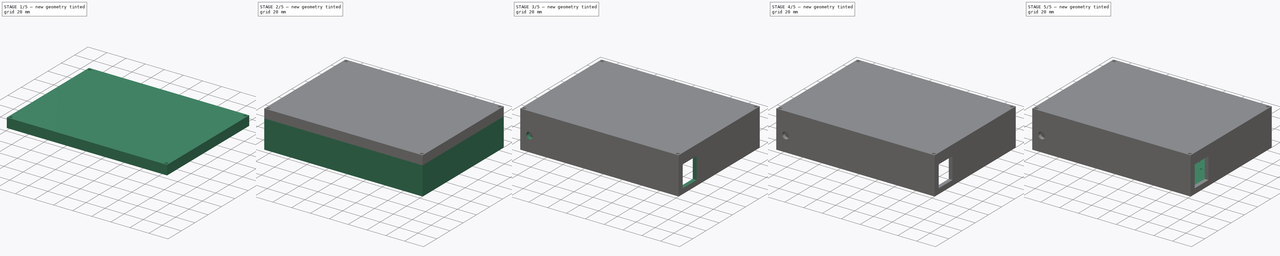
[diagram: build sequence overview — one tinted view per stage of 5, left to right]
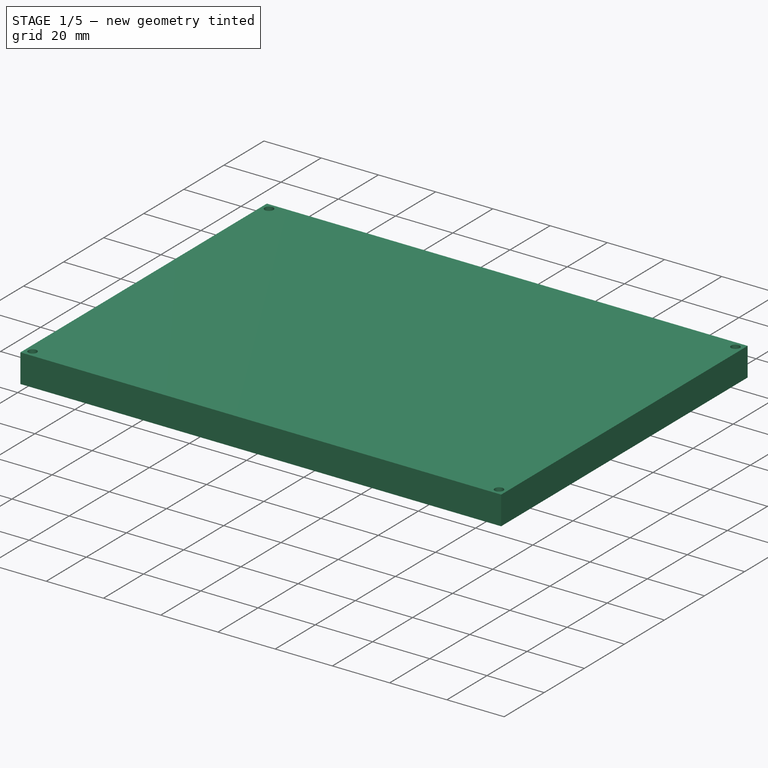
[diagram: stage 1 of 5 — iso view after this stage's code; geometry added in this stage tinted green]
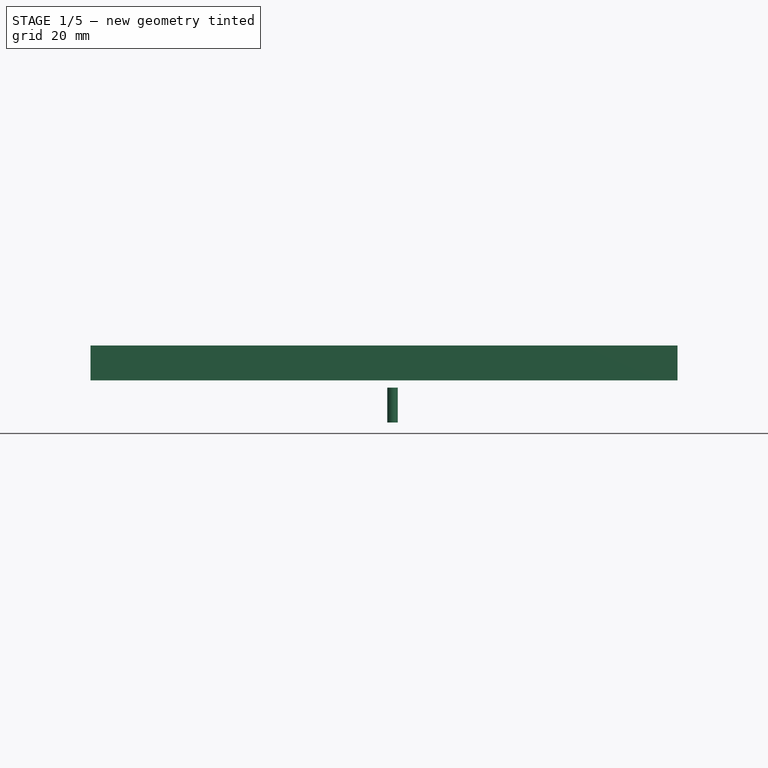
[diagram: stage 1 of 5 — front view after this stage's code; geometry added in this stage tinted green]
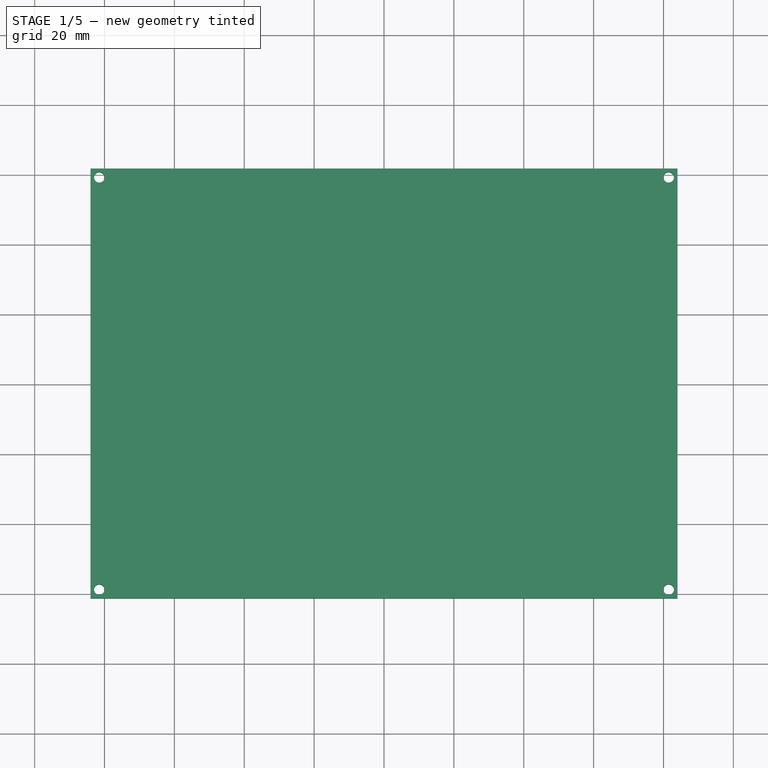
[diagram: stage 1 of 5 — top view after this stage's code; geometry added in this stage tinted green]
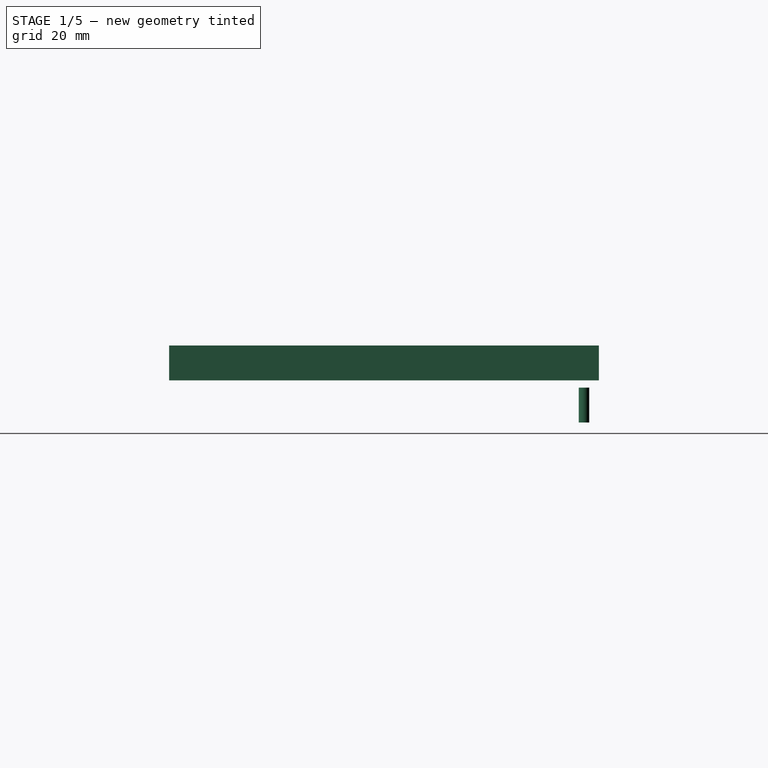
[diagram: stage 1 of 5 — right view after this stage's code; geometry added in this stage tinted green]
FCSTD DOCUMENT  (FreeCAD 0.20R29410 (Git))
Label: caja_bot
License: All rights reserved
LicenseURL: http://en.wikipedia.org/wiki/All_rights_reserved
objects: Part::Feature×27, Sketcher::SketchObject×14, Part::Extrusion×14, Part::Cut×7, Part::MultiFuse×4, Part::Compound2×1
note: 66 computed .brp shape members not serialized (recipe doc carries the construction recipe); baked Part::Feature solids carry a one-line shape summary decoded from their .brp

FEATURE [Sketcher::SketchObject] Sketch010
  FullyConstrained = false
  Placement = pos=(0,0,0) rot=(0.57735,0.57735,0.57735;2.0944rad)
  sketch-geometry (4):
    g0: LineSegment StartX=59.7481 StartY=27.4557 StartZ=0 EndX=54.7481 EndY=27.4557 EndZ=0
    g1: LineSegment StartX=54.7481 StartY=27.4557 StartZ=0 EndX=54.7481 EndY=22.4557 EndZ=0
    g2: LineSegment StartX=59.7481 StartY=27.4557 StartZ=0 EndX=59.7481 EndY=17.4841 EndZ=0
    g3: LineSegment StartX=59.7481 StartY=17.4841 StartZ=0 EndX=54.7481 EndY=22.4557 EndZ=0
  constraints (9):
    c: Horizontal(g0)
    c: Coincident(g0,g1)
    c: Coincident(g0,g2)
    c: Vertical(g2)
    c: Coincident(g2,g3)
    c: Coincident(g3,g1)
    c: DistanceX(g0,g0) = 5
    c: Vertical(g1)
    c: DistanceY(g1,g1) = 5
FEATURE [Part::Extrusion] Extrude010
  Base = -> Sketch010
  Dir = (1,0,0)
  DirMode = 2
  FaceMakerClass = Part::FaceMakerBullseye
  LengthFwd = 5
  LengthRev = 0
  Solid = true
  Symmetric = false
FEATURE [Sketcher::SketchObject] Sketch011
  FullyConstrained = false
  MapMode = 5
  Placement = pos=(0,0,27.4557) rot=(0,0,1;0rad)
  Support = -> [Extrude010]
  sketch-geometry (1):
    g0: Circle CenterX=2.4374 CenterY=57.2525 CenterZ=0 NormalX=0 NormalY=0 NormalZ=1 AngleXU=0 Radius=1.5
  constraints (1):
    c: Diameter(g0) = 3
FEATURE [Part::Extrusion] Extrude011
  Base = -> Sketch011
  Dir = (0,0,1)
  DirMode = 2
  FaceMakerClass = Part::FaceMakerBullseye
  LengthFwd = 0
  LengthRev = 10
  Solid = true
  Symmetric = false
FEATURE [Sketcher::SketchObject] Sketch012
  FullyConstrained = false
  sketch-geometry (12):
    g0: LineSegment StartX=-84 StartY=61.5 StartZ=0 EndX=84 EndY=61.5 EndZ=0
    g1: LineSegment StartX=84 StartY=61.5 StartZ=0 EndX=84 EndY=-61.5 EndZ=0
    g2: LineSegment StartX=84 StartY=-61.5 StartZ=0 EndX=-84 EndY=-61.5 EndZ=0
    g3: LineSegment StartX=-84 StartY=-61.5 StartZ=0 EndX=-84 EndY=61.5 EndZ=0
    g4: LineSegment StartX=-79 StartY=56.5 StartZ=0 EndX=79 EndY=56.5 EndZ=0
    g5: LineSegment StartX=79 StartY=56.5 StartZ=0 EndX=79 EndY=-56.5 EndZ=0
    g6: LineSegment StartX=79 StartY=-56.5 StartZ=0 EndX=-79 EndY=-56.5 EndZ=0
    g7: LineSegment StartX=-79 StartY=-56.5 StartZ=0 EndX=-79 EndY=56.5 EndZ=0
    g8: Circle CenterX=-81.5 CenterY=59 CenterZ=0 NormalX=0 NormalY=0 NormalZ=1 AngleXU=0 Radius=1.5
    g9: Circle CenterX=81.5 CenterY=59 CenterZ=0 NormalX=0 NormalY=0 NormalZ=1 AngleXU=0 Radius=1.5
    g10: Circle CenterX=81.5 CenterY=-59 CenterZ=0 NormalX=0 NormalY=0 NormalZ=1 AngleXU=0 Radius=1.5
    g11: Circle CenterX=-81.5 CenterY=-59 CenterZ=0 NormalX=0 NormalY=0 NormalZ=1 AngleXU=0 Radius=1.5
  constraints (27):
    c: Coincident(g0,g1)
    c: Coincident(g1,g2)
    c: Coincident(g2,g3)
    c: Coincident(g3,g0)
    c: Horizontal(g0)
    c: Horizontal(g2)
    c: Vertical(g1)
    c: Vertical(g3)
    c: DistanceY(g1,g1) = 123
    c: DistanceX(g0,g0) = 168
    c: Symmetric(g0,g1,g-1)
    c: Coincident(g4,g5)
    c: Coincident(g5,g6)
    c: Coincident(g6,g7)
    c: Coincident(g7,g4)
    c: Horizontal(g4)
    c: Horizontal(g6)
    c: Vertical(g5)
    c: Vertical(g7)
    c: Symmetric(g5,g4,g-1)
    c: Distance(g4,g0) = 5
    c: Distance(g4,g3) = 5
    c: Diameter(g8) = 3
    c: Symmetric(g0,g4,g8)
    c: Diameter(g9) = 3
    c: Diameter(g11) = 3
    c: Diameter(g10) = 3
FEATURE [Part::Extrusion] Extrude012
  Base = -> Sketch012
  Dir = (0,0,1)
  DirMode = 2
  FaceMakerClass = Part::FaceMakerBullseye
  LengthFwd = 10
  LengthRev = 0
  Solid = true
  Symmetric = false
FEATURE [Sketcher::SketchObject] Sketch013
  FullyConstrained = true
  sketch-geometry (4):
    g0: LineSegment StartX=-80 StartY=57.5 StartZ=0 EndX=80 EndY=57.5 EndZ=0
    g1: LineSegment StartX=80 StartY=57.5 StartZ=0 EndX=80 EndY=-57.5 EndZ=0
    g2: LineSegment StartX=80 StartY=-57.5 StartZ=0 EndX=-80 EndY=-57.5 EndZ=0
    g3: LineSegment StartX=-80 StartY=-57.5 StartZ=0 EndX=-80 EndY=57.5 EndZ=0
  constraints (11):
    c: Coincident(g0,g1)
    c: Coincident(g1,g2)
    c: Coincident(g2,g3)
    c: Coincident(g3,g0)
    c: Horizontal(g0)
    c: Horizontal(g2)
    c: Vertical(g1)
    c: Vertical(g3)
    c: Symmetric(g1,g0,g-1)
    c: DistanceX(g0,g0) = 160
    c: DistanceY(g1,g1) = 115
FEATURE [Part::Extrusion] Extrude013
  Base = -> Sketch013
  Dir = (0,0,1)
  DirMode = 2
  FaceMakerClass = Part::FaceMakerBullseye
  LengthFwd = 2
  LengthRev = 0
  Solid = true
  Symmetric = false
FEATURE [Part::MultiFuse] Fusion003
  Placement = pos=(0,4.8e-15,39.5) rot=(1,0,0;3.14159rad)
  Shapes = -> [Extrude012,Extrude013]
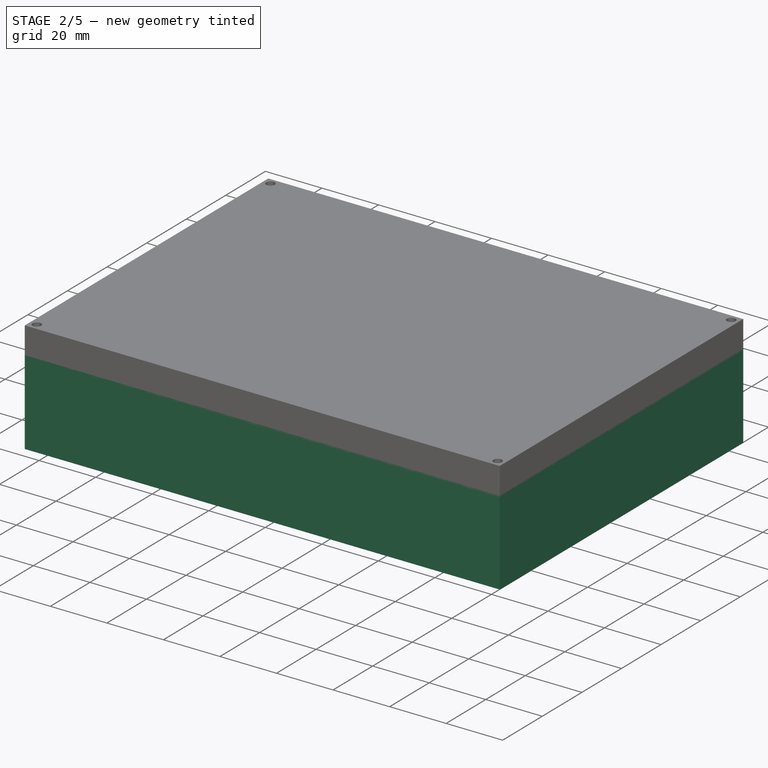
[diagram: stage 2 of 5 — iso view after this stage's code; geometry added in this stage tinted green]
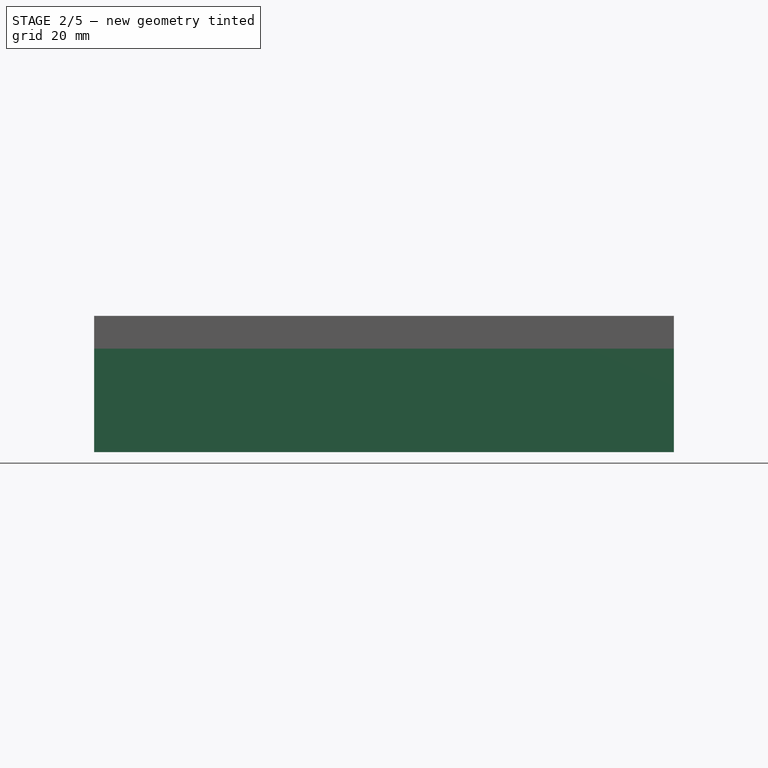
[diagram: stage 2 of 5 — front view after this stage's code; geometry added in this stage tinted green]
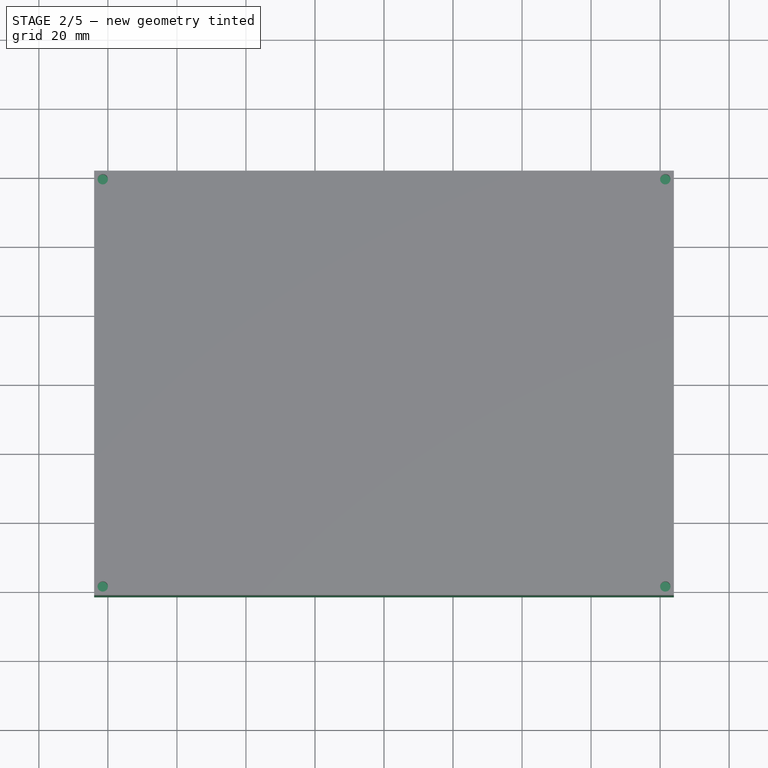
[diagram: stage 2 of 5 — top view after this stage's code; geometry added in this stage tinted green]
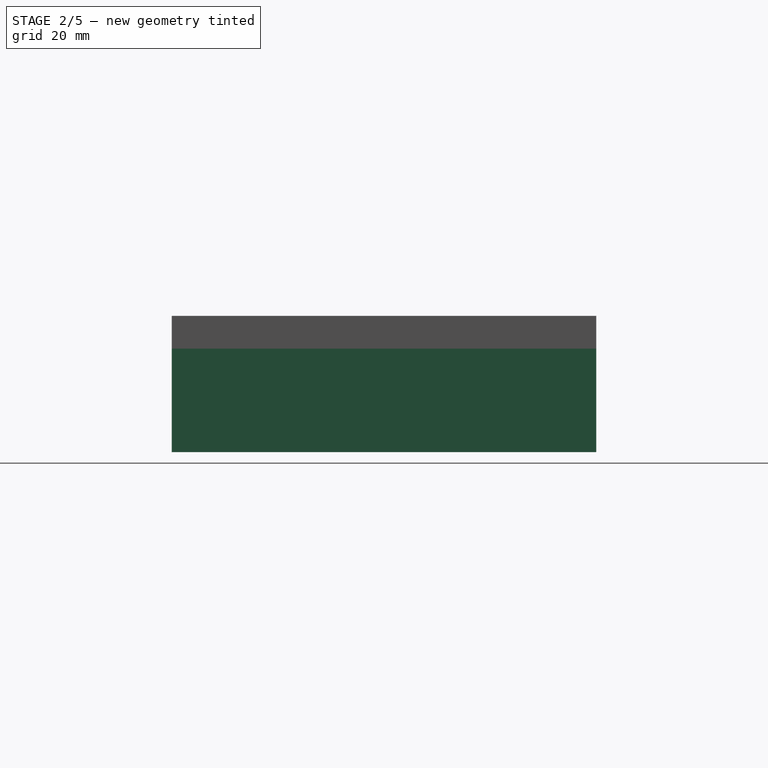
[diagram: stage 2 of 5 — right view after this stage's code; geometry added in this stage tinted green]
FEATURE [Sketcher::SketchObject] Sketch006
  FullyConstrained = true
  sketch-geometry (8):
    g0: LineSegment StartX=-80 StartY=57.5 StartZ=0 EndX=80 EndY=57.5 EndZ=0
    g1: LineSegment StartX=80 StartY=57.5 StartZ=0 EndX=80 EndY=-57.5 EndZ=0
    g2: LineSegment StartX=80 StartY=-57.5 StartZ=0 EndX=-80 EndY=-57.5 EndZ=0
    g3: LineSegment StartX=-80 StartY=-57.5 StartZ=0 EndX=-80 EndY=57.5 EndZ=0
    g4: LineSegment StartX=-84 StartY=61.5 StartZ=0 EndX=84 EndY=61.5 EndZ=0
    g5: LineSegment StartX=84 StartY=61.5 StartZ=0 EndX=84 EndY=-61.5 EndZ=0
    g6: LineSegment StartX=84 StartY=-61.5 StartZ=0 EndX=-84 EndY=-61.5 EndZ=0
    g7: LineSegment StartX=-84 StartY=-61.5 StartZ=0 EndX=-84 EndY=61.5 EndZ=0
  constraints (22):
    c: Coincident(g0,g1)
    c: Coincident(g1,g2)
    c: Coincident(g2,g3)
    c: Coincident(g3,g0)
    c: Horizontal(g0)
    c: Horizontal(g2)
    c: Vertical(g1)
    c: Vertical(g3)
    c: DistanceX(g2,g2) = 160
    c: DistanceY(g1,g1) = 115
    c: Coincident(g4,g5)
    c: Coincident(g5,g6)
    c: Coincident(g6,g7)
    c: Coincident(g7,g4)
    c: Horizontal(g4)
    c: Horizontal(g6)
    c: Vertical(g5)
    c: Vertical(g7)
    c: Symmetric(g1,g0,g-1)
    c: Symmetric(g5,g4,g-1)
    c: Distance(g0,g4) = 4
    c: Distance(g2,g7) = 4
FEATURE [Part::Extrusion] Extrude006
  Base = -> Sketch006
  Dir = (0,0,1)
  DirMode = 2
  FaceMakerClass = Part::FaceMakerBullseye
  LengthFwd = 30
  LengthRev = 0
  Solid = true
  Symmetric = false
FEATURE [Part::Cut] Cut003  label="Screw Holder"
  Base = -> Extrude010
  Placement = pos=(-76,-2,2.5) rot=(0,0,1;0rad)
  Tool = -> Extrude011
FEATURE [Part::Cut] Cut004  label="Screw Holder001"
  Base = -> Extrude010
  Placement = pos=(71.5,-2,2.5) rot=(0,0,1;0rad)
  Tool = -> Extrude011
FEATURE [Part::Cut] Cut005  label="Screw Holder002"
  Base = -> Extrude010
  Placement = pos=(-70.5,2,2.5) rot=(0,0,1;3.14159rad)
  Tool = -> Extrude011
FEATURE [Part::Cut] Cut006  label="Screw Holder003"
  Base = -> Extrude010
  Placement = pos=(71.5,2,2.5) rot=(0,0,1;3.14159rad)
  Tool = -> Extrude011
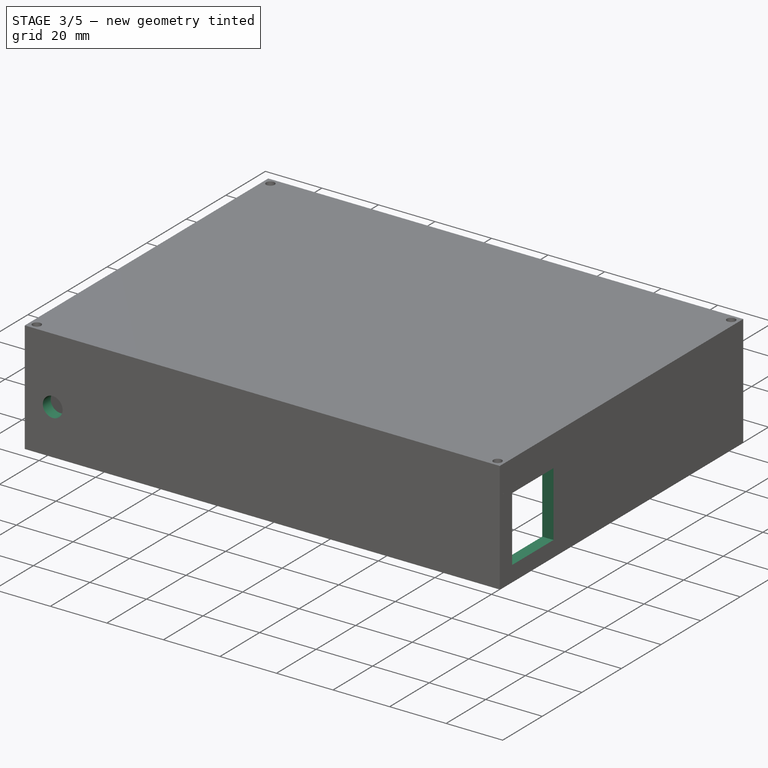
[diagram: stage 3 of 5 — iso view after this stage's code; geometry added in this stage tinted green]
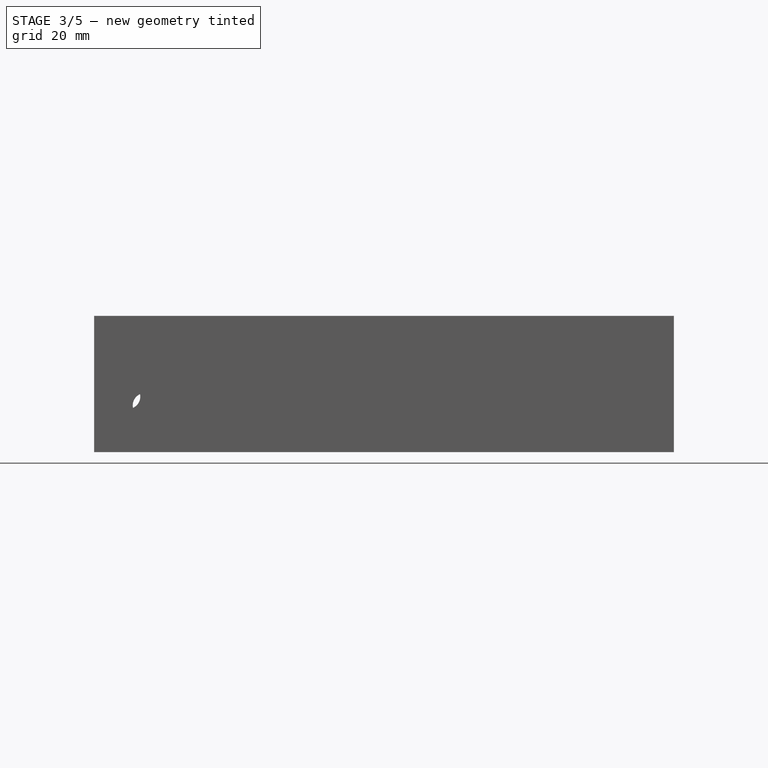
[diagram: stage 3 of 5 — front view after this stage's code; geometry added in this stage tinted green]
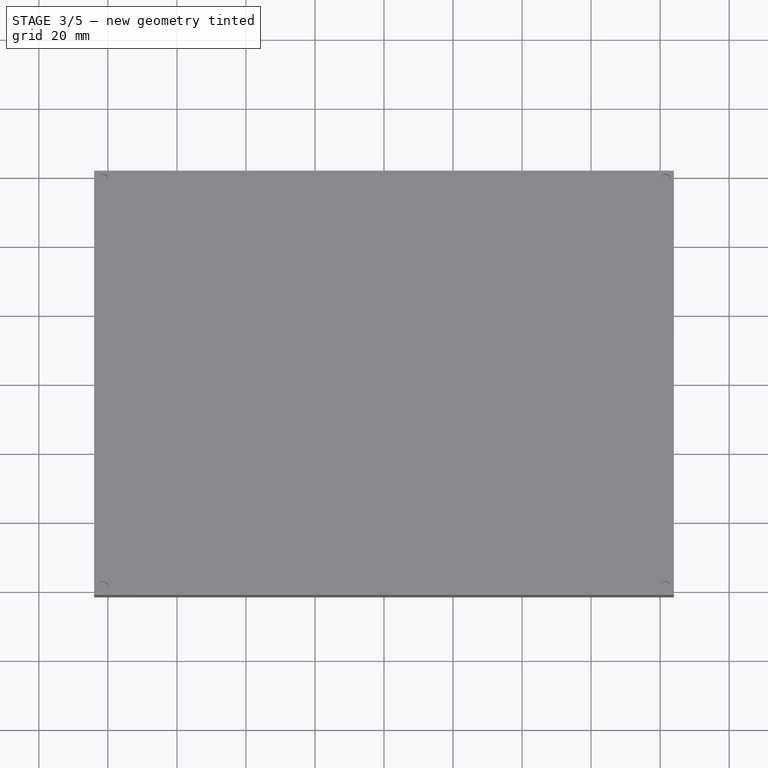
[diagram: stage 3 of 5 — top view after this stage's code; geometry added in this stage tinted green]
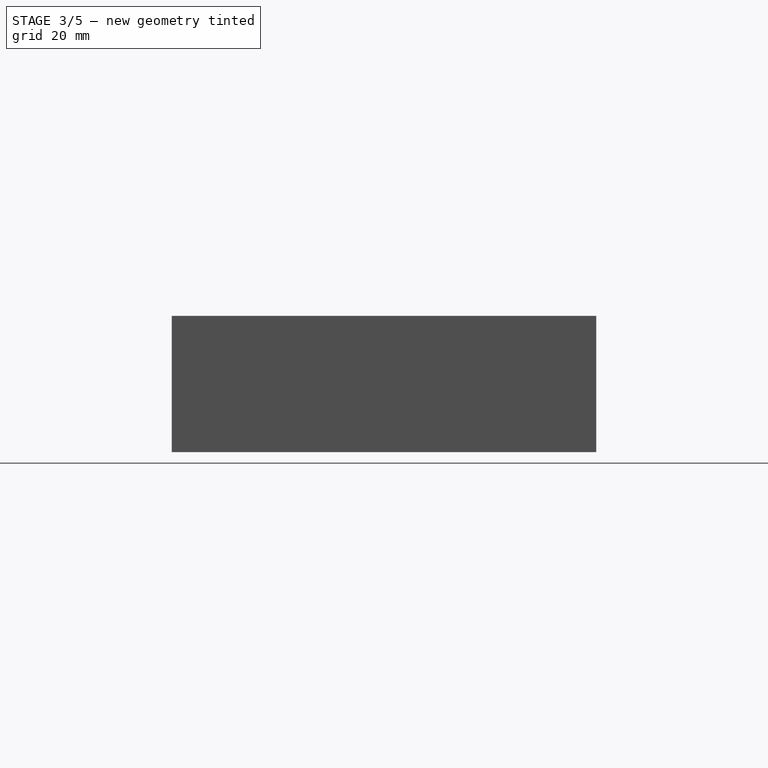
[diagram: stage 3 of 5 — right view after this stage's code; geometry added in this stage tinted green]
FEATURE [Sketcher::SketchObject] Sketch007
  FullyConstrained = false
  MapMode = 5
  Placement = pos=(84,0,0) rot=(0.57735,0.57735,0.57735;2.0944rad)
  Support = -> [Extrude006]
  sketch-geometry (4):
    g0: LineSegment StartX=-55.2691 StartY=28.4407 StartZ=0 EndX=-34.3166 EndY=28.4407 EndZ=0
    g1: LineSegment StartX=-34.3166 StartY=28.4407 StartZ=0 EndX=-34.3166 EndY=5.46054 EndZ=0
    g2: LineSegment StartX=-34.3166 StartY=5.46054 StartZ=0 EndX=-55.2691 EndY=5.46054 EndZ=0
    g3: LineSegment StartX=-55.2691 StartY=5.46054 StartZ=0 EndX=-55.2691 EndY=28.4407 EndZ=0
  constraints (8):
    c: Coincident(g0,g1)
    c: Coincident(g1,g2)
    c: Coincident(g2,g3)
    c: Coincident(g3,g0)
    c: Horizontal(g0)
    c: Horizontal(g2)
    c: Vertical(g1)
    c: Vertical(g3)
FEATURE [Part::Extrusion] Extrude007
  Base = -> Sketch007
  Dir = (1,0,0)
  DirMode = 2
  FaceMakerClass = Part::FaceMakerBullseye
  LengthFwd = 16
  LengthRev = 0
  Solid = true
  Symmetric = true
FEATURE [Part::Cut] Cut
  Base = -> Extrude006
  Tool = -> Extrude007
FEATURE [Sketcher::SketchObject] Sketch008
  FullyConstrained = false
  MapMode = 5
  Placement = pos=(0,61.5,0) rot=(0,0.707107,0.707107;3.14159rad)
  Support = -> [Cut]
  sketch-geometry (1):
    g0: Circle CenterX=69.2722 CenterY=13.5668 CenterZ=0 NormalX=0 NormalY=0 NormalZ=1 AngleXU=0 Radius=3.525
  constraints (1):
    c: Diameter(g0) = 7.05
FEATURE [Part::Extrusion] Extrude008
  Base = -> Sketch008
  Dir = (0,1,-2e-16)
  DirMode = 2
  FaceMakerClass = Part::FaceMakerBullseye
  LengthFwd = 20
  LengthRev = 0
  Solid = true
  Symmetric = true
FEATURE [Part::Cut] Cut001
  Base = -> Cut
  Tool = -> Extrude008
FEATURE [Sketcher::SketchObject] Sketch009
  FullyConstrained = false
  MapMode = 5
  Placement = pos=(0,-61.5,0) rot=(1,0,0;1.5708rad)
  Support = -> [Cut001]
  sketch-geometry (1):
    g0: Circle CenterX=-74.1156 CenterY=16.0673 CenterZ=0 NormalX=0 NormalY=0 NormalZ=1 AngleXU=0 Radius=3.5
  constraints (1):
    c: Diameter(g0) = 7
FEATURE [Part::Extrusion] Extrude009
  Base = -> Sketch009
  Dir = (0,-1,2e-16)
  DirMode = 2
  FaceMakerClass = Part::FaceMakerBullseye
  LengthFwd = 20
  LengthRev = 0
  Solid = true
  Symmetric = true
FEATURE [Part::Cut] Cut002
  Base = -> Cut001
  Tool = -> Extrude009
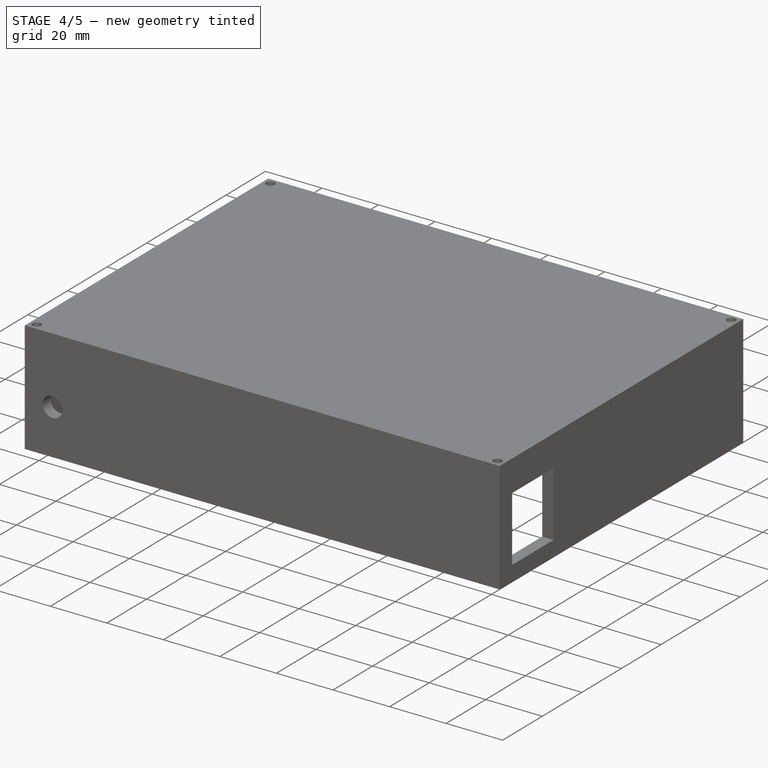
[diagram: stage 4 of 5 — iso view after this stage's code; geometry added in this stage tinted green]
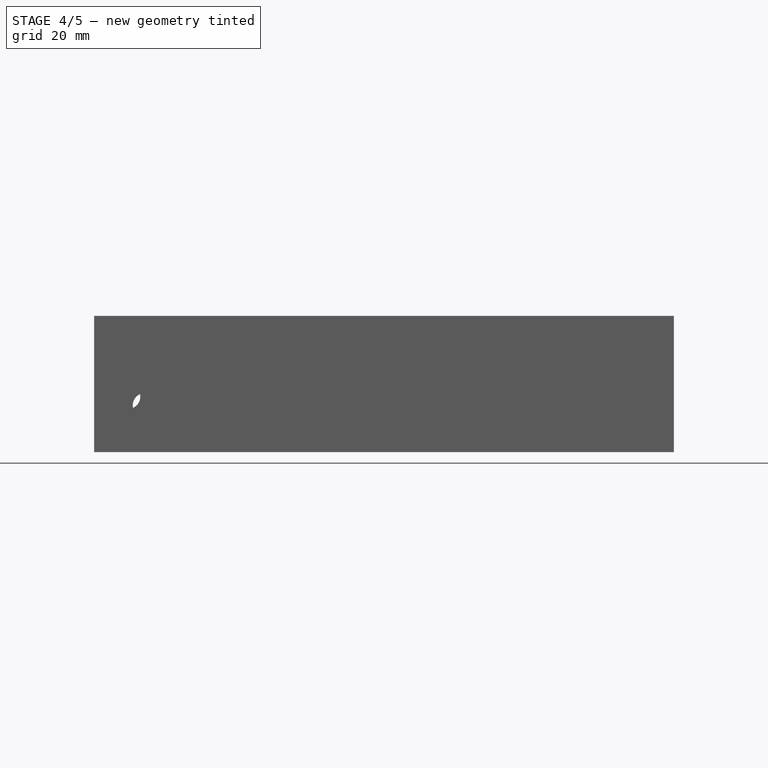
[diagram: stage 4 of 5 — front view after this stage's code; geometry added in this stage tinted green]
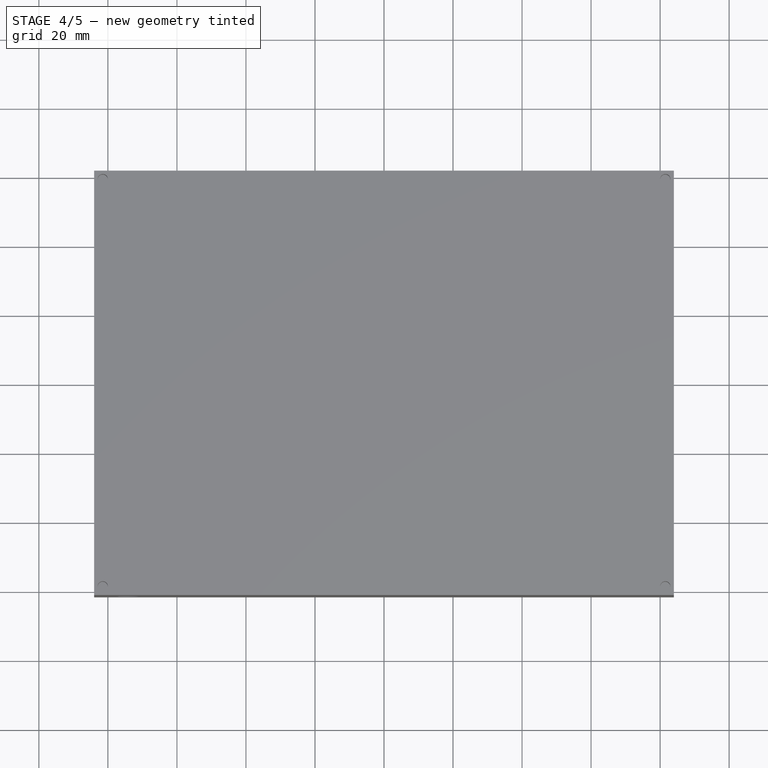
[diagram: stage 4 of 5 — top view after this stage's code; geometry added in this stage tinted green]
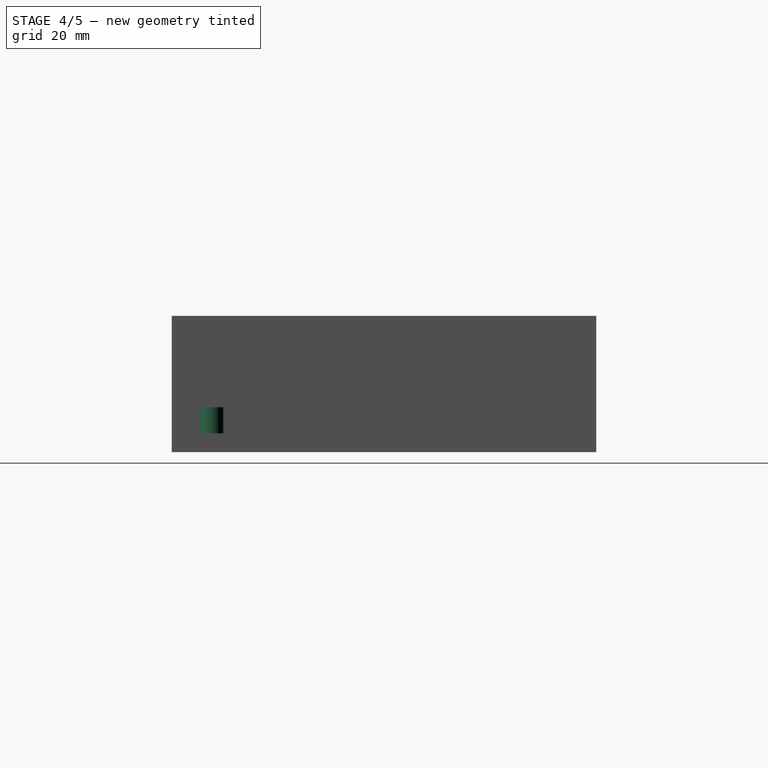
[diagram: stage 4 of 5 — right view after this stage's code; geometry added in this stage tinted green]
FEATURE [Sketcher::SketchObject] Sketch
  FullyConstrained = false
  sketch-geometry (324):
    g0: LineSegment StartX=-80 StartY=57.5 StartZ=0 EndX=80 EndY=57.5 EndZ=0
    g1: LineSegment StartX=80 StartY=57.5 StartZ=0 EndX=80 EndY=-57.5 EndZ=0
    g2: LineSegment StartX=80 StartY=-57.5 StartZ=0 EndX=-80 EndY=-57.5 EndZ=0
    g3: LineSegment StartX=-80 StartY=-57.5 StartZ=0 EndX=-80 EndY=57.5 EndZ=0
    g4: LineSegment StartX=-58.4235 StartY=-37.7632 StartZ=0 EndX=-55.9235 EndY=-37.7632 EndZ=0
    g5: LineSegment StartX=-55.9235 StartY=-37.7632 StartZ=0 EndX=-55.9235 EndY=-39.0132 EndZ=0
    g6: LineSegment StartX=-55.9235 StartY=-39.0132 StartZ=0 EndX=-58.4235 EndY=-39.0132 EndZ=0
    g7: LineSegment StartX=-58.4235 StartY=-39.0132 StartZ=0 EndX=-58.4235 EndY=-37.7632 EndZ=0
    g8: LineSegment StartX=-48.3739 StartY=-37.7566 StartZ=0 EndX=-45.8739 EndY=-37.7566 EndZ=0
    g9: LineSegment StartX=-45.8739 StartY=-37.7566 StartZ=0 EndX=-45.8739 EndY=-39.0066 EndZ=0
    g10: LineSegment StartX=-45.8739 StartY=-39.0066 StartZ=0 EndX=-48.3739 EndY=-39.0066 EndZ=0
    g11: LineSegment StartX=-48.3739 StartY=-39.0066 StartZ=0 EndX=-48.3739 EndY=-37.7566 EndZ=0
    g12: LineSegment StartX=-35.4697 StartY=-37.8576 StartZ=0 EndX=-32.9697 EndY=-37.8576 EndZ=0
    g13: LineSegment StartX=-32.9697 StartY=-37.8576 StartZ=0 EndX=-32.9697 EndY=-39.1076 EndZ=0
    g14: LineSegment StartX=-32.9697 StartY=-39.1076 StartZ=0 EndX=-35.4697 EndY=-39.1076 EndZ=0
    g15: LineSegment StartX=-35.4697 StartY=-39.1076 StartZ=0 EndX=-35.4697 EndY=-37.8576 EndZ=0
    g16: LineSegment StartX=-25.4201 StartY=-37.8511 StartZ=0 EndX=-22.9201 EndY=-37.8511 EndZ=0
    g17: LineSegment StartX=-22.9201 StartY=-37.8511 StartZ=0 EndX=-22.9201 EndY=-39.1011 EndZ=0
    g18: LineSegment StartX=-22.9201 StartY=-39.1011 StartZ=0 EndX=-25.4201 EndY=-39.1011 EndZ=0
    g19: LineSegment StartX=-25.4201 StartY=-39.1011 StartZ=0 EndX=-25.4201 EndY=-37.8511 EndZ=0
    g20: LineSegment StartX=-58.7494 StartY=-26.2821 StartZ=0 EndX=-56.2494 EndY=-26.2821 EndZ=0
    g21: LineSegment StartX=-56.2494 StartY=-26.2821 StartZ=0 EndX=-56.2494 EndY=-27.5321 EndZ=0
    g22: LineSegment StartX=-56.2494 StartY=-27.5321 StartZ=0 EndX=-58.7494 EndY=-27.5321 EndZ=0
    g23: LineSegment StartX=-58.7494 StartY=-27.5321 StartZ=0 EndX=-58.7494 EndY=-26.2821 EndZ=0
    g24: LineSegment StartX=-48.6998 StartY=-26.2755 StartZ=0 EndX=-46.1998 EndY=-26.2755 EndZ=0
    g25: LineSegment StartX=-46.1998 StartY=-26.2755 StartZ=0 EndX=-46.1998 EndY=-27.5255 EndZ=0
    g26: LineSegment StartX=-46.1998 StartY=-27.5255 StartZ=0 EndX=-48.6998 EndY=-27.5255 EndZ=0
    g27: LineSegment StartX=-48.6998 StartY=-27.5255 StartZ=0 EndX=-48.6998 EndY=-26.2755 EndZ=0
    g28: LineSegment StartX=-35.7956 StartY=-26.3765 StartZ=0 EndX=-33.2956 EndY=-26.3765 EndZ=0
    g29: LineSegment StartX=-33.2956 StartY=-26.3765 StartZ=0 EndX=-33.2956 EndY=-27.6265 EndZ=0
    g30: LineSegment StartX=-33.2956 StartY=-27.6265 StartZ=0 EndX=-35.7956 EndY=-27.6265 EndZ=0
    g31: LineSegment StartX=-35.7956 StartY=-27.6265 StartZ=0 EndX=-35.7956 EndY=-26.3765 EndZ=0
    g32: LineSegment StartX=-25.746 StartY=-26.37 StartZ=0 EndX=-23.246 EndY=-26.37 EndZ=0
    g33: LineSegment StartX=-23.246 StartY=-26.37 StartZ=0 EndX=-23.246 EndY=-27.62 EndZ=0
    g34: LineSegment StartX=-23.246 StartY=-27.62 StartZ=0 EndX=-25.746 EndY=-27.62 EndZ=0
    g35: LineSegment StartX=-25.746 StartY=-27.62 StartZ=0 EndX=-25.746 EndY=-26.37 EndZ=0
    g36: LineSegment StartX=-58.0792 StartY=-16.0764 StartZ=0 EndX=-55.5792 EndY=-16.0764 EndZ=0
    g37: LineSegment StartX=-55.5792 StartY=-16.0764 StartZ=0 EndX=-55.5792 EndY=-17.3264 EndZ=0
    g38: LineSegment StartX=-55.5792 StartY=-17.3264 StartZ=0 EndX=-58.0792 EndY=-17.3264 EndZ=0
    g39: LineSegment StartX=-58.0792 StartY=-17.3264 StartZ=0 EndX=-58.0792 EndY=-16.0764 EndZ=0
    g40: LineSegment StartX=-48.0296 StartY=-16.0699 StartZ=0 EndX=-45.5296 EndY=-16.0699 EndZ=0
    g41: LineSegment StartX=-45.5296 StartY=-16.0699 StartZ=0 EndX=-45.5296 EndY=-17.3199 EndZ=0
    g42: LineSegment StartX=-45.5296 StartY=-17.3199 StartZ=0 EndX=-48.0296 EndY=-17.3199 EndZ=0
    g43: LineSegment StartX=-48.0296 StartY=-17.3199 StartZ=0 EndX=-48.0296 EndY=-16.0699 EndZ=0
    g44: LineSegment StartX=-35.1255 StartY=-16.1709 StartZ=0 EndX=-32.6255 EndY=-16.1709 EndZ=0
    g45: LineSegment StartX=-32.6255 StartY=-16.1709 StartZ=0 EndX=-32.6255 EndY=-17.4209 EndZ=0
    g46: LineSegment StartX=-32.6255 StartY=-17.4209 StartZ=0 EndX=-35.1255 EndY=-17.4209 EndZ=0
    g47: LineSegment StartX=-35.1255 StartY=-17.4209 StartZ=0 EndX=-35.1255 EndY=-16.1709 EndZ=0
    g48: LineSegment StartX=-25.0759 StartY=-16.1643 StartZ=0 EndX=-22.5759 EndY=-16.1643 EndZ=0
    g49: LineSegment StartX=-22.5759 StartY=-16.1643 StartZ=0 EndX=-22.5759 EndY=-17.4143 EndZ=0
    g50: LineSegment StartX=-22.5759 StartY=-17.4143 StartZ=0 EndX=-25.0759 EndY=-17.4143 EndZ=0
    g51: LineSegment StartX=-25.0759 StartY=-17.4143 StartZ=0 EndX=-25.0759 EndY=-16.1643 EndZ=0
    g52: LineSegment StartX=-58.4051 StartY=-4.59531 StartZ=0 EndX=-55.9051 EndY=-4.59531 EndZ=0
    g53: LineSegment StartX=-55.9051 StartY=-4.59531 StartZ=0 EndX=-55.9051 EndY=-5.84531 EndZ=0
    g54: LineSegment StartX=-55.9051 StartY=-5.84531 StartZ=0 EndX=-58.4051 EndY=-5.84531 EndZ=0
    g55: LineSegment StartX=-58.4051 StartY=-5.84531 StartZ=0 EndX=-58.4051 EndY=-4.59531 EndZ=0
    g56: LineSegment StartX=-48.3555 StartY=-4.58874 StartZ=0 EndX=-45.8555 EndY=-4.58874 EndZ=0
    g57: LineSegment StartX=-45.8555 StartY=-4.58874 StartZ=0 EndX=-45.8555 EndY=-5.83874 EndZ=0
    g58: LineSegment StartX=-45.8555 StartY=-5.83874 StartZ=0 EndX=-48.3555 EndY=-5.83874 EndZ=0
    g59: LineSegment StartX=-48.3555 StartY=-5.83874 StartZ=0 EndX=-48.3555 EndY=-4.58874 EndZ=0
    g60: LineSegment StartX=-35.4514 StartY=-4.68977 StartZ=0 EndX=-32.9514 EndY=-4.68977 EndZ=0
    g61: LineSegment StartX=-32.9514 StartY=-4.68977 StartZ=0 EndX=-32.9514 EndY=-5.93977 EndZ=0
    g62: LineSegment StartX=-32.9514 StartY=-5.93977 StartZ=0 EndX=-35.4514 EndY=-5.93977 EndZ=0
    g63: LineSegment StartX=-35.4514 StartY=-5.93977 StartZ=0 EndX=-35.4514 EndY=-4.68977 EndZ=0
    g64: LineSegment StartX=-25.4018 StartY=-4.6832 StartZ=0 EndX=-22.9018 EndY=-4.6832 EndZ=0
    g65: LineSegment StartX=-22.9018 StartY=-4.6832 StartZ=0 EndX=-22.9018 EndY=-5.9332 EndZ=0
    g66: LineSegment StartX=-22.9018 StartY=-5.9332 StartZ=0 EndX=-25.4018 EndY=-5.9332 EndZ=0
    g67: LineSegment StartX=-25.4018 StartY=-5.9332 StartZ=0 EndX=-25.4018 EndY=-4.6832 EndZ=0
    g68: LineSegment StartX=-58.579 StartY=14.9806 StartZ=0 EndX=-56.079 EndY=14.9806 EndZ=0
    g69: LineSegment StartX=-56.079 StartY=14.9806 StartZ=0 EndX=-56.079 EndY=13.7306 EndZ=0
    g70: LineSegment StartX=-56.079 StartY=13.7306 StartZ=0 EndX=-58.579 EndY=13.7306 EndZ=0
    g71: LineSegment StartX=-58.579 StartY=13.7306 StartZ=0 EndX=-58.579 EndY=14.9806 EndZ=0
    g72: LineSegment StartX=-48.5294 StartY=14.9872 StartZ=0 EndX=-46.0294 EndY=14.9872 EndZ=0
    g73: LineSegment StartX=-46.0294 StartY=14.9872 StartZ=0 EndX=-46.0294 EndY=13.7372 EndZ=0
    g74: LineSegment StartX=-46.0294 StartY=13.7372 StartZ=0 EndX=-48.5294 EndY=13.7372 EndZ=0
    g75: LineSegment StartX=-48.5294 StartY=13.7372 StartZ=0 EndX=-48.5294 EndY=14.9872 EndZ=0
    g76: LineSegment StartX=-35.6252 StartY=14.8861 StartZ=0 EndX=-33.1252 EndY=14.8861 EndZ=0
    g77: LineSegment StartX=-33.1252 StartY=14.8861 StartZ=0 EndX=-33.1252 EndY=13.6361 EndZ=0
    g78: LineSegment StartX=-33.1252 StartY=13.6361 StartZ=0 EndX=-35.6252 EndY=13.6361 EndZ=0
    g79: LineSegment StartX=-35.6252 StartY=13.6361 StartZ=0 EndX=-35.6252 EndY=14.8861 EndZ=0
    g80: LineSegment StartX=-25.5756 StartY=14.8927 StartZ=0 EndX=-23.0756 EndY=14.8927 EndZ=0
    g81: LineSegment StartX=-23.0756 StartY=14.8927 StartZ=0 EndX=-23.0756 EndY=13.6427 EndZ=0
    g82: LineSegment StartX=-23.0756 StartY=13.6427 StartZ=0 EndX=-25.5756 EndY=13.6427 EndZ=0
    g83: LineSegment StartX=-25.5756 StartY=13.6427 StartZ=0 EndX=-25.5756 EndY=14.8927 EndZ=0
    g84: LineSegment StartX=-58.9049 StartY=26.4617 StartZ=0 EndX=-56.4049 EndY=26.4617 EndZ=0
    g85: LineSegment StartX=-56.4049 StartY=26.4617 StartZ=0 EndX=-56.4049 EndY=25.2117 EndZ=0
    g86: LineSegment StartX=-56.4049 StartY=25.2117 StartZ=0 EndX=-58.9049 EndY=25.2117 EndZ=0
    g87: LineSegment StartX=-58.9049 StartY=25.2117 StartZ=0 EndX=-58.9049 EndY=26.4617 EndZ=0
    g88: LineSegment StartX=-48.8553 StartY=26.4683 StartZ=0 EndX=-46.3553 EndY=26.4683 EndZ=0
    g89: LineSegment StartX=-46.3553 StartY=26.4683 StartZ=0 EndX=-46.3553 EndY=25.2183 EndZ=0
    g90: LineSegment StartX=-46.3553 StartY=25.2183 StartZ=0 EndX=-48.8553 EndY=25.2183 EndZ=0
    g91: LineSegment StartX=-48.8553 StartY=25.2183 StartZ=0 EndX=-48.8553 EndY=26.4683 EndZ=0
    g92: LineSegment StartX=-35.9511 StartY=26.3673 StartZ=0 EndX=-33.4511 EndY=26.3673 EndZ=0
    g93: LineSegment StartX=-33.4511 StartY=26.3673 StartZ=0 EndX=-33.4511 EndY=25.1173 EndZ=0
    g94: LineSegment StartX=-33.4511 StartY=25.1173 StartZ=0 EndX=-35.9511 EndY=25.1173 EndZ=0
    g95: LineSegment StartX=-35.9511 StartY=25.1173 StartZ=0 EndX=-35.9511 EndY=26.3673 EndZ=0
    g96: LineSegment StartX=-25.9015 StartY=26.3738 StartZ=0 EndX=-23.4015 EndY=26.3738 EndZ=0
    g97: LineSegment StartX=-23.4015 StartY=26.3738 StartZ=0 EndX=-23.4015 EndY=25.1238 EndZ=0
    g98: LineSegment StartX=-23.4015 StartY=25.1238 StartZ=0 EndX=-25.9015 EndY=25.1238 EndZ=0
    g99: LineSegment StartX=-25.9015 StartY=25.1238 StartZ=0 EndX=-25.9015 EndY=26.3738 EndZ=0
    g100: LineSegment StartX=-58.2347 StartY=36.6674 StartZ=0 EndX=-55.7347 EndY=36.6674 EndZ=0
    g101: LineSegment StartX=-55.7347 StartY=36.6674 StartZ=0 EndX=-55.7347 EndY=35.4174 EndZ=0
    g102: LineSegment StartX=-55.7347 StartY=35.4174 StartZ=0 EndX=-58.2347 EndY=35.4174 EndZ=0
    g103: LineSegment StartX=-58.2347 StartY=35.4174 StartZ=0 EndX=-58.2347 EndY=36.6674 EndZ=0
    g104: LineSegment StartX=-48.1851 StartY=36.6739 StartZ=0 EndX=-45.6851 EndY=36.6739 EndZ=0
    g105: LineSegment StartX=-45.6851 StartY=36.6739 StartZ=0 EndX=-45.6851 EndY=35.4239 EndZ=0
    g106: LineSegment StartX=-45.6851 StartY=35.4239 StartZ=0 EndX=-48.1851 EndY=35.4239 EndZ=0
    g107: LineSegment StartX=-48.1851 StartY=35.4239 StartZ=0 EndX=-48.1851 EndY=36.6739 EndZ=0
    g108: LineSegment StartX=-35.281 StartY=36.5729 StartZ=0 EndX=-32.781 EndY=36.5729 EndZ=0
    g109: LineSegment StartX=-32.781 StartY=36.5729 StartZ=0 EndX=-32.781 EndY=35.3229 EndZ=0
    g110: LineSegment StartX=-32.781 StartY=35.3229 StartZ=0 EndX=-35.281 EndY=35.3229 EndZ=0
    g111: LineSegment StartX=-35.281 StartY=35.3229 StartZ=0 EndX=-35.281 EndY=36.5729 EndZ=0
    g112: LineSegment StartX=-25.2314 StartY=36.5795 StartZ=0 EndX=-22.7314 EndY=36.5795 EndZ=0
    g113: LineSegment StartX=-22.7314 StartY=36.5795 StartZ=0 EndX=-22.7314 EndY=35.3295 EndZ=0
    g114: LineSegment StartX=-22.7314 StartY=35.3295 StartZ=0 EndX=-25.2314 EndY=35.3295 EndZ=0
    g115: LineSegment StartX=-25.2314 StartY=35.3295 StartZ=0 EndX=-25.2314 EndY=36.5795 EndZ=0
    g116: LineSegment StartX=-58.5606 StartY=48.1485 StartZ=0 EndX=-56.0606 EndY=48.1485 EndZ=0
    g117: LineSegment StartX=-56.0606 StartY=48.1485 StartZ=0 EndX=-56.0606 EndY=46.8985 EndZ=0
    g118: LineSegment StartX=-56.0606 StartY=46.8985 StartZ=0 EndX=-58.5606 EndY=46.8985 EndZ=0
    g119: LineSegment StartX=-58.5606 StartY=46.8985 StartZ=0 EndX=-58.5606 EndY=48.1485 EndZ=0
    g120: LineSegment StartX=-48.511 StartY=48.155 StartZ=0 EndX=-46.011 EndY=48.155 EndZ=0
    g121: LineSegment StartX=-46.011 StartY=48.155 StartZ=0 EndX=-46.011 EndY=46.905 EndZ=0
    g122: LineSegment StartX=-46.011 StartY=46.905 StartZ=0 EndX=-48.511 EndY=46.905 EndZ=0
    g123: LineSegment StartX=-48.511 StartY=46.905 StartZ=0 EndX=-48.511 EndY=48.155 EndZ=0
    g124: LineSegment StartX=-35.6069 StartY=48.054 StartZ=0 EndX=-33.1069 EndY=48.054 EndZ=0
    g125: LineSegment StartX=-33.1069 StartY=48.054 StartZ=0 EndX=-33.1069 EndY=46.804 EndZ=0
    g126: LineSegment StartX=-33.1069 StartY=46.804 StartZ=0 EndX=-35.6069 EndY=46.804 EndZ=0
    g127: LineSegment StartX=-35.6069 StartY=46.804 StartZ=0 EndX=-35.6069 EndY=48.054 EndZ=0
    g128: LineSegment StartX=-25.5573 StartY=48.0606 StartZ=0 EndX=-23.0573 EndY=48.0606 EndZ=0
    g129: LineSegment StartX=-23.0573 StartY=48.0606 StartZ=0 EndX=-23.0573 EndY=46.8106 EndZ=0
    g130: LineSegment StartX=-23.0573 StartY=46.8106 StartZ=0 EndX=-25.5573 EndY=46.8106 EndZ=0
    g131: LineSegment StartX=-25.5573 StartY=46.8106 StartZ=0 EndX=-25.5573 EndY=48.0606 EndZ=0
    g132: LineSegment StartX=29.3523 StartY=-37.9975 StartZ=0 EndX=31.8523 EndY=-37.9975 EndZ=0
    g133: LineSegment StartX=31.8523 StartY=-37.9975 StartZ=0 EndX=31.8523 EndY=-39.2475 EndZ=0
    g134: LineSegment StartX=31.8523 StartY=-39.2475 StartZ=0 EndX=29.3523 EndY=-39.2475 EndZ=0
    g135: LineSegment StartX=29.3523 StartY=-39.2475 StartZ=0 EndX=29.3523 EndY=-37.9975 EndZ=0
    g136: LineSegment StartX=39.4019 StartY=-37.991 StartZ=0 EndX=41.9019 EndY=-37.991 EndZ=0
    g137: LineSegment StartX=41.9019 StartY=-37.991 StartZ=0 EndX=41.9019 EndY=-39.241 EndZ=0
    g138: LineSegment StartX=41.9019 StartY=-39.241 StartZ=0 EndX=39.4019 EndY=-39.241 EndZ=0
    g139: LineSegment StartX=39.4019 StartY=-39.241 StartZ=0 EndX=39.4019 EndY=-37.991 EndZ=0
    g140: LineSegment StartX=52.306 StartY=-38.092 StartZ=0 EndX=54.806 EndY=-38.092 EndZ=0
    g141: LineSegment StartX=54.806 StartY=-38.092 StartZ=0 EndX=54.806 EndY=-39.342 EndZ=0
    g142: LineSegment StartX=54.806 StartY=-39.342 StartZ=0 EndX=52.306 EndY=-39.342 EndZ=0
    g143: LineSegment StartX=52.306 StartY=-39.342 StartZ=0 EndX=52.306 EndY=-38.092 EndZ=0
    g144: LineSegment StartX=62.3556 StartY=-38.0854 StartZ=0 EndX=64.8556 EndY=-38.0854 EndZ=0
    g145: LineSegment StartX=64.8556 StartY=-38.0854 StartZ=0 EndX=64.8556 EndY=-39.3354 EndZ=0
    g146: LineSegment StartX=64.8556 StartY=-39.3354 StartZ=0 EndX=62.3556 EndY=-39.3354 EndZ=0
    g147: LineSegment StartX=62.3556 StartY=-39.3354 StartZ=0 EndX=62.3556 EndY=-38.0854 EndZ=0
    g148: LineSegment StartX=29.0264 StartY=-26.5164 StartZ=0 EndX=31.5264 EndY=-26.5164 EndZ=0
    g149: LineSegment StartX=31.5264 StartY=-26.5164 StartZ=0 EndX=31.5264 EndY=-27.7664 EndZ=0
    g150: LineSegment StartX=31.5264 StartY=-27.7664 StartZ=0 EndX=29.0264 EndY=-27.7664 EndZ=0
    g151: LineSegment StartX=29.0264 StartY=-27.7664 StartZ=0 EndX=29.0264 EndY=-26.5164 EndZ=0
    g152: LineSegment StartX=39.076 StartY=-26.5098 StartZ=0 EndX=41.576 EndY=-26.5098 EndZ=0
    g153: LineSegment StartX=41.576 StartY=-26.5098 StartZ=0 EndX=41.576 EndY=-27.7598 EndZ=0
    g154: LineSegment StartX=41.576 StartY=-27.7598 StartZ=0 EndX=39.076 EndY=-27.7598 EndZ=0
    g155: LineSegment StartX=39.076 StartY=-27.7598 StartZ=0 EndX=39.076 EndY=-26.5098 EndZ=0
    g156: LineSegment StartX=51.9801 StartY=-26.6109 StartZ=0 EndX=54.4801 EndY=-26.6109 EndZ=0
    g157: LineSegment StartX=54.4801 StartY=-26.6109 StartZ=0 EndX=54.4801 EndY=-27.8609 EndZ=0
    g158: LineSegment StartX=54.4801 StartY=-27.8609 StartZ=0 EndX=51.9801 EndY=-27.8609 EndZ=0
    g159: LineSegment StartX=51.9801 StartY=-27.8609 StartZ=0 EndX=51.9801 EndY=-26.6109 EndZ=0
    g160: LineSegment StartX=62.0297 StartY=-26.6043 StartZ=0 EndX=64.5297 EndY=-26.6043 EndZ=0
    g161: LineSegment StartX=64.5297 StartY=-26.6043 StartZ=0 EndX=64.5297 EndY=-27.8543 EndZ=0
    g162: LineSegment StartX=64.5297 StartY=-27.8543 StartZ=0 EndX=62.0297 EndY=-27.8543 EndZ=0
    g163: LineSegment StartX=62.0297 StartY=-27.8543 StartZ=0 EndX=62.0297 EndY=-26.6043 EndZ=0
    g164: LineSegment StartX=29.6965 StartY=-16.3108 StartZ=0 EndX=32.1965 EndY=-16.3108 EndZ=0
    g165: LineSegment StartX=32.1965 StartY=-16.3108 StartZ=0 EndX=32.1965 EndY=-17.5608 EndZ=0
    g166: LineSegment StartX=32.1965 StartY=-17.5608 StartZ=0 EndX=29.6965 EndY=-17.5608 EndZ=0
    g167: LineSegment StartX=29.6965 StartY=-17.5608 StartZ=0 EndX=29.6965 EndY=-16.3108 EndZ=0
    g168: LineSegment StartX=39.7461 StartY=-16.3042 StartZ=0 EndX=42.2461 EndY=-16.3042 EndZ=0
    g169: LineSegment StartX=42.2461 StartY=-16.3042 StartZ=0 EndX=42.2461 EndY=-17.5542 EndZ=0
    g170: LineSegment StartX=42.2461 StartY=-17.5542 StartZ=0 EndX=39.7461 EndY=-17.5542 EndZ=0
    g171: LineSegment StartX=39.7461 StartY=-17.5542 StartZ=0 EndX=39.7461 EndY=-16.3042 EndZ=0
    g172: LineSegment StartX=52.6503 StartY=-16.4052 StartZ=0 EndX=55.1503 EndY=-16.4052 EndZ=0
    g173: LineSegment StartX=55.1503 StartY=-16.4052 StartZ=0 EndX=55.1503 EndY=-17.6552 EndZ=0
    g174: LineSegment StartX=55.1503 StartY=-17.6552 StartZ=0 EndX=52.6503 EndY=-17.6552 EndZ=0
    g175: LineSegment StartX=52.6503 StartY=-17.6552 StartZ=0 EndX=52.6503 EndY=-16.4052 EndZ=0
    g176: LineSegment StartX=62.6998 StartY=-16.3987 StartZ=0 EndX=65.1998 EndY=-16.3987 EndZ=0
    g177: LineSegment StartX=65.1998 StartY=-16.3987 StartZ=0 EndX=65.1998 EndY=-17.6487 EndZ=0
    g178: LineSegment StartX=65.1998 StartY=-17.6487 StartZ=0 EndX=62.6998 EndY=-17.6487 EndZ=0
    g179: LineSegment StartX=62.6998 StartY=-17.6487 StartZ=0 EndX=62.6998 EndY=-16.3987 EndZ=0
    g180: LineSegment StartX=29.3706 StartY=-4.82966 StartZ=0 EndX=31.8706 EndY=-4.82966 EndZ=0
    g181: LineSegment StartX=31.8706 StartY=-4.82966 StartZ=0 EndX=31.8706 EndY=-6.07966 EndZ=0
    g182: LineSegment StartX=31.8706 StartY=-6.07966 StartZ=0 EndX=29.3706 EndY=-6.07966 EndZ=0
    g183: LineSegment StartX=29.3706 StartY=-6.07966 StartZ=0 EndX=29.3706 EndY=-4.82966 EndZ=0
    g184: LineSegment StartX=39.4202 StartY=-4.8231 StartZ=0 EndX=41.9202 EndY=-4.8231 EndZ=0
    g185: LineSegment StartX=41.9202 StartY=-4.8231 StartZ=0 EndX=41.9202 EndY=-6.0731 EndZ=0
    g186: LineSegment StartX=41.9202 StartY=-6.0731 StartZ=0 EndX=39.4202 EndY=-6.0731 EndZ=0
    g187: LineSegment StartX=39.4202 StartY=-6.0731 StartZ=0 EndX=39.4202 EndY=-4.8231 EndZ=0
    g188: LineSegment StartX=52.3244 StartY=-4.92412 StartZ=0 EndX=54.8244 EndY=-4.92412 EndZ=0
    g189: LineSegment StartX=54.8244 StartY=-4.92412 StartZ=0 EndX=54.8244 EndY=-6.17412 EndZ=0
    g190: LineSegment StartX=54.8244 StartY=-6.17412 StartZ=0 EndX=52.3244 EndY=-6.17412 EndZ=0
    g191: LineSegment StartX=52.3244 StartY=-6.17412 StartZ=0 EndX=52.3244 EndY=-4.92412 EndZ=0
    g192: LineSegment StartX=62.3739 StartY=-4.91756 StartZ=0 EndX=64.8739 EndY=-4.91756 EndZ=0
    g193: LineSegment StartX=64.8739 StartY=-4.91756 StartZ=0 EndX=64.8739 EndY=-6.16756 EndZ=0
    g194: LineSegment StartX=64.8739 StartY=-6.16756 StartZ=0 EndX=62.3739 EndY=-6.16756 EndZ=0
    g195: LineSegment StartX=62.3739 StartY=-6.16756 StartZ=0 EndX=62.3739 EndY=-4.91756 EndZ=0
    g196: LineSegment StartX=29.1968 StartY=14.7463 StartZ=0 EndX=31.6968 EndY=14.7463 EndZ=0
    g197: LineSegment StartX=31.6968 StartY=14.7463 StartZ=0 EndX=31.6968 EndY=13.4963 EndZ=0
    g198: LineSegment StartX=31.6968 StartY=13.4963 StartZ=0 EndX=29.1968 EndY=13.4963 EndZ=0
    g199: LineSegment StartX=29.1968 StartY=13.4963 StartZ=0 EndX=29.1968 EndY=14.7463 EndZ=0
    g200: LineSegment StartX=39.2464 StartY=14.7528 StartZ=0 EndX=41.7464 EndY=14.7528 EndZ=0
    g201: LineSegment StartX=41.7464 StartY=14.7528 StartZ=0 EndX=41.7464 EndY=13.5028 EndZ=0
    g202: LineSegment StartX=41.7464 StartY=13.5028 StartZ=0 EndX=39.2464 EndY=13.5028 EndZ=0
    g203: LineSegment StartX=39.2464 StartY=13.5028 StartZ=0 EndX=39.2464 EndY=14.7528 EndZ=0
    g204: LineSegment StartX=52.1505 StartY=14.6518 StartZ=0 EndX=54.6505 EndY=14.6518 EndZ=0
    g205: LineSegment StartX=54.6505 StartY=14.6518 StartZ=0 EndX=54.6505 EndY=13.4018 EndZ=0
    g206: LineSegment StartX=54.6505 StartY=13.4018 StartZ=0 EndX=52.1505 EndY=13.4018 EndZ=0
    g207: LineSegment StartX=52.1505 StartY=13.4018 StartZ=0 EndX=52.1505 EndY=14.6518 EndZ=0
    g208: LineSegment StartX=62.2001 StartY=14.6584 StartZ=0 EndX=64.7001 EndY=14.6584 EndZ=0
    g209: LineSegment StartX=64.7001 StartY=14.6584 StartZ=0 EndX=64.7001 EndY=13.4084 EndZ=0
    g210: LineSegment StartX=64.7001 StartY=13.4084 StartZ=0 EndX=62.2001 EndY=13.4084 EndZ=0
    g211: LineSegment StartX=62.2001 StartY=13.4084 StartZ=0 EndX=62.2001 EndY=14.6584 EndZ=0
    g212: LineSegment StartX=28.8709 StartY=26.2274 StartZ=0 EndX=31.3709 EndY=26.2274 EndZ=0
    g213: LineSegment StartX=31.3709 StartY=26.2274 StartZ=0 EndX=31.3709 EndY=24.9774 EndZ=0
    g214: LineSegment StartX=31.3709 StartY=24.9774 StartZ=0 EndX=28.8709 EndY=24.9774 EndZ=0
    g215: LineSegment StartX=28.8709 StartY=24.9774 StartZ=0 EndX=28.8709 EndY=26.2274 EndZ=0
    g216: LineSegment StartX=38.9205 StartY=26.2339 StartZ=0 EndX=41.4205 EndY=26.2339 EndZ=0
    g217: LineSegment StartX=41.4205 StartY=26.2339 StartZ=0 EndX=41.4205 EndY=24.9839 EndZ=0
    g218: LineSegment StartX=41.4205 StartY=24.9839 StartZ=0 EndX=38.9205 EndY=24.9839 EndZ=0
    g219: LineSegment StartX=38.9205 StartY=24.9839 StartZ=0 EndX=38.9205 EndY=26.2339 EndZ=0
    g220: LineSegment StartX=51.8246 StartY=26.1329 StartZ=0 EndX=54.3246 EndY=26.1329 EndZ=0
    g221: LineSegment StartX=54.3246 StartY=26.1329 StartZ=0 EndX=54.3246 EndY=24.8829 EndZ=0
    g222: LineSegment StartX=54.3246 StartY=24.8829 StartZ=0 EndX=51.8246 EndY=24.8829 EndZ=0
    g223: LineSegment StartX=51.8246 StartY=24.8829 StartZ=0 EndX=51.8246 EndY=26.1329 EndZ=0
    g224: LineSegment StartX=61.8742 StartY=26.1395 StartZ=0 EndX=64.3742 EndY=26.1395 EndZ=0
    g225: LineSegment StartX=64.3742 StartY=26.1395 StartZ=0 EndX=64.3742 EndY=24.8895 EndZ=0
    g226: LineSegment StartX=64.3742 StartY=24.8895 StartZ=0 EndX=61.8742 EndY=24.8895 EndZ=0
    g227: LineSegment StartX=61.8742 StartY=24.8895 StartZ=0 EndX=61.8742 EndY=26.1395 EndZ=0
    g228: LineSegment StartX=29.541 StartY=36.433 StartZ=0 EndX=32.041 EndY=36.433 EndZ=0
    g229: LineSegment StartX=32.041 StartY=36.433 StartZ=0 EndX=32.041 EndY=35.183 EndZ=0
    g230: LineSegment StartX=32.041 StartY=35.183 StartZ=0 EndX=29.541 EndY=35.183 EndZ=0
    g231: LineSegment StartX=29.541 StartY=35.183 StartZ=0 EndX=29.541 EndY=36.433 EndZ=0
    g232: LineSegment StartX=39.5906 StartY=36.4396 StartZ=0 EndX=42.0906 EndY=36.4396 EndZ=0
    g233: LineSegment StartX=42.0906 StartY=36.4396 StartZ=0 EndX=42.0906 EndY=35.1896 EndZ=0
    g234: LineSegment StartX=42.0906 StartY=35.1896 StartZ=0 EndX=39.5906 EndY=35.1896 EndZ=0
    g235: LineSegment StartX=39.5906 StartY=35.1896 StartZ=0 EndX=39.5906 EndY=36.4396 EndZ=0
    g236: LineSegment StartX=52.4948 StartY=36.3385 StartZ=0 EndX=54.9948 EndY=36.3385 EndZ=0
    g237: LineSegment StartX=54.9948 StartY=36.3385 StartZ=0 EndX=54.9948 EndY=35.0885 EndZ=0
    g238: LineSegment StartX=54.9948 StartY=35.0885 StartZ=0 EndX=52.4948 EndY=35.0885 EndZ=0
    g239: LineSegment StartX=52.4948 StartY=35.0885 StartZ=0 EndX=52.4948 EndY=36.3385 EndZ=0
    g240: LineSegment StartX=62.5443 StartY=36.3451 StartZ=0 EndX=65.0443 EndY=36.3451 EndZ=0
    g241: LineSegment StartX=65.0443 StartY=36.3451 StartZ=0 EndX=65.0443 EndY=35.0951 EndZ=0
    g242: LineSegment StartX=65.0443 StartY=35.0951 StartZ=0 EndX=62.5443 EndY=35.0951 EndZ=0
    g243: LineSegment StartX=62.5443 StartY=35.0951 StartZ=0 EndX=62.5443 EndY=36.3451 EndZ=0
    g244: LineSegment StartX=29.2151 StartY=47.9141 StartZ=0 EndX=31.7151 EndY=47.9141 EndZ=0
    g245: LineSegment StartX=31.7151 StartY=47.9141 StartZ=0 EndX=31.7151 EndY=46.6641 EndZ=0
    g246: LineSegment StartX=31.7151 StartY=46.6641 StartZ=0 EndX=29.2151 EndY=46.6641 EndZ=0
    g247: LineSegment StartX=29.2151 StartY=46.6641 StartZ=0 EndX=29.2151 EndY=47.9141 EndZ=0
    g248: LineSegment StartX=39.2647 StartY=47.9207 StartZ=0 EndX=41.7647 EndY=47.9207 EndZ=0
    g249: LineSegment StartX=41.7647 StartY=47.9207 StartZ=0 EndX=41.7647 EndY=46.6707 EndZ=0
    g250: LineSegment StartX=41.7647 StartY=46.6707 StartZ=0 EndX=39.2647 EndY=46.6707 EndZ=0
    g251: LineSegment StartX=39.2647 StartY=46.6707 StartZ=0 EndX=39.2647 EndY=47.9207 EndZ=0
    g252: LineSegment StartX=52.1689 StartY=47.8197 StartZ=0 EndX=54.6689 EndY=47.8197 EndZ=0
    g253: LineSegment StartX=54.6689 StartY=47.8197 StartZ=0 EndX=54.6689 EndY=46.5697 EndZ=0
    g254: LineSegment StartX=54.6689 StartY=46.5697 StartZ=0 EndX=52.1689 EndY=46.5697 EndZ=0
    g255: LineSegment StartX=52.1689 StartY=46.5697 StartZ=0 EndX=52.1689 EndY=47.8197 EndZ=0
    g256: LineSegment StartX=62.2184 StartY=47.8262 StartZ=0 EndX=64.7184 EndY=47.8262 EndZ=0
    g257: LineSegment StartX=64.7184 StartY=47.8262 StartZ=0 EndX=64.7184 EndY=46.5762 EndZ=0
    g258: LineSegment StartX=64.7184 StartY=46.5762 StartZ=0 EndX=62.2184 EndY=46.5762 EndZ=0
    g259: LineSegment StartX=62.2184 StartY=46.5762 StartZ=0 EndX=62.2184 EndY=47.8262 EndZ=0
    g260: LineSegment StartX=-0.538694 StartY=14.5461 StartZ=0 EndX=1.96131 EndY=14.5461 EndZ=0
    g261: LineSegment StartX=1.96131 StartY=14.5461 StartZ=0 EndX=1.96131 EndY=13.2961 EndZ=0
    g262: LineSegment StartX=1.96131 StartY=13.2961 StartZ=0 EndX=-0.538694 EndY=13.2961 EndZ=0
    g263: LineSegment StartX=-0.538694 StartY=13.2961 StartZ=0 EndX=-0.538694 EndY=14.5461 EndZ=0
    g264: LineSegment StartX=9.51089 StartY=14.5527 StartZ=0 EndX=12.0109 EndY=14.5527 EndZ=0
    g265: LineSegment StartX=12.0109 StartY=14.5527 StartZ=0 EndX=12.0109 EndY=13.3027 EndZ=0
    g266: LineSegment StartX=12.0109 StartY=13.3027 StartZ=0 EndX=9.51089 EndY=13.3027 EndZ=0
    g267: LineSegment StartX=9.51089 StartY=13.3027 StartZ=0 EndX=9.51089 EndY=14.5527 EndZ=0
    g268: LineSegment StartX=-0.864587 StartY=26.0273 StartZ=0 EndX=1.63541 EndY=26.0273 EndZ=0
    g269: LineSegment StartX=1.63541 StartY=26.0273 StartZ=0 EndX=1.63541 EndY=24.7773 EndZ=0
    g270: LineSegment StartX=1.63541 StartY=24.7773 StartZ=0 EndX=-0.864587 EndY=24.7773 EndZ=0
    g271: LineSegment StartX=-0.864587 StartY=24.7773 StartZ=0 EndX=-0.864587 EndY=26.0273 EndZ=0
    g272: LineSegment StartX=9.185 StartY=26.0338 StartZ=0 EndX=11.685 EndY=26.0338 EndZ=0
    g273: LineSegment StartX=11.685 StartY=26.0338 StartZ=0 EndX=11.685 EndY=24.7838 EndZ=0
    g274: LineSegment StartX=11.685 StartY=24.7838 StartZ=0 EndX=9.185 EndY=24.7838 EndZ=0
    g275: LineSegment StartX=9.185 StartY=24.7838 StartZ=0 EndX=9.185 EndY=26.0338 EndZ=0
    g276: LineSegment StartX=-0.194471 StartY=36.2329 StartZ=0 EndX=2.30553 EndY=36.2329 EndZ=0
    g277: LineSegment StartX=2.30553 StartY=36.2329 StartZ=0 EndX=2.30553 EndY=34.9829 EndZ=0
    g278: LineSegment StartX=2.30553 StartY=34.9829 StartZ=0 EndX=-0.194471 EndY=34.9829 EndZ=0
    g279: LineSegment StartX=-0.194471 StartY=34.9829 StartZ=0 EndX=-0.194471 EndY=36.2329 EndZ=0
    g280: LineSegment StartX=9.85512 StartY=36.2395 StartZ=0 EndX=12.3551 EndY=36.2395 EndZ=0
    g281: LineSegment StartX=12.3551 StartY=36.2395 StartZ=0 EndX=12.3551 EndY=34.9895 EndZ=0
    g282: LineSegment StartX=12.3551 StartY=34.9895 StartZ=0 EndX=9.85512 EndY=34.9895 EndZ=0
    g283: LineSegment StartX=9.85512 StartY=34.9895 StartZ=0 EndX=9.85512 EndY=36.2395 EndZ=0
    g284: LineSegment StartX=-0.520364 StartY=47.714 StartZ=0 EndX=1.97964 EndY=47.714 EndZ=0
    g285: LineSegment StartX=1.97964 StartY=47.714 StartZ=0 EndX=1.97964 EndY=46.464 EndZ=0
    g286: LineSegment StartX=1.97964 StartY=46.464 StartZ=0 EndX=-0.520364 EndY=46.464 EndZ=0
    g287: LineSegment StartX=-0.520364 StartY=46.464 StartZ=0 EndX=-0.520364 EndY=47.714 EndZ=0
    g288: LineSegment StartX=9.52922 StartY=47.7206 StartZ=0 EndX=12.0292 EndY=47.7206 EndZ=0
    g289: LineSegment StartX=12.0292 StartY=47.7206 StartZ=0 EndX=12.0292 EndY=46.4706 EndZ=0
    g290: LineSegment StartX=12.0292 StartY=46.4706 StartZ=0 EndX=9.52922 EndY=46.4706 EndZ=0
    g291: LineSegment StartX=9.52922 StartY=46.4706 StartZ=0 EndX=9.52922 EndY=47.7206 EndZ=0
    g292: LineSegment StartX=-1.05223 StartY=-36.8076 StartZ=0 EndX=1.44777 EndY=-36.8076 EndZ=0
    g293: LineSegment StartX=1.44777 StartY=-36.8076 StartZ=0 EndX=1.44777 EndY=-38.0576 EndZ=0
    g294: LineSegment StartX=1.44777 StartY=-38.0576 StartZ=0 EndX=-1.05223 EndY=-38.0576 EndZ=0
    g295: LineSegment StartX=-1.05223 StartY=-38.0576 StartZ=0 EndX=-1.05223 EndY=-36.8076 EndZ=0
    g296: LineSegment StartX=8.99736 StartY=-36.801 StartZ=0 EndX=11.4974 EndY=-36.801 EndZ=0
    g297: LineSegment StartX=11.4974 StartY=-36.801 StartZ=0 EndX=11.4974 EndY=-38.051 EndZ=0
    g298: LineSegment StartX=11.4974 StartY=-38.051 StartZ=0 EndX=8.99736 EndY=-38.051 EndZ=0
    g299: LineSegment StartX=8.99736 StartY=-38.051 StartZ=0 EndX=8.99736 EndY=-36.801 EndZ=0
    g300: LineSegment StartX=-1.37812 StartY=-25.3264 StartZ=0 EndX=1.12188 EndY=-25.3264 EndZ=0
    g301: LineSegment StartX=1.12188 StartY=-25.3264 StartZ=0 EndX=1.12188 EndY=-26.5764 EndZ=0
    g302: LineSegment StartX=1.12188 StartY=-26.5764 StartZ=0 EndX=-1.37812 EndY=-26.5764 EndZ=0
    g303: LineSegment StartX=-1.37812 StartY=-26.5764 StartZ=0 EndX=-1.37812 EndY=-25.3264 EndZ=0
    g304: LineSegment StartX=8.67147 StartY=-25.3199 StartZ=0 EndX=11.1715 EndY=-25.3199 EndZ=0
    g305: LineSegment StartX=11.1715 StartY=-25.3199 StartZ=0 EndX=11.1715 EndY=-26.5699 EndZ=0
    g306: LineSegment StartX=11.1715 StartY=-26.5699 StartZ=0 EndX=8.67147 EndY=-26.5699 EndZ=0
    g307: LineSegment StartX=8.67147 StartY=-26.5699 StartZ=0 EndX=8.67147 EndY=-25.3199 EndZ=0
    g308: LineSegment StartX=-0.708004 StartY=-15.1208 StartZ=0 EndX=1.792 EndY=-15.1208 EndZ=0
    g309: LineSegment StartX=1.792 StartY=-15.1208 StartZ=0 EndX=1.792 EndY=-16.3708 EndZ=0
    g310: LineSegment StartX=1.792 StartY=-16.3708 StartZ=0 EndX=-0.708004 EndY=-16.3708 EndZ=0
    g311: LineSegment StartX=-0.708004 StartY=-16.3708 StartZ=0 EndX=-0.708004 EndY=-15.1208 EndZ=0
    g312: LineSegment StartX=9.34158 StartY=-15.1142 StartZ=0 EndX=11.8416 EndY=-15.1142 EndZ=0
    g313: LineSegment StartX=11.8416 StartY=-15.1142 StartZ=0 EndX=11.8416 EndY=-16.3642 EndZ=0
    g314: LineSegment StartX=11.8416 StartY=-16.3642 StartZ=0 EndX=9.34158 EndY=-16.3642 EndZ=0
    g315: LineSegment StartX=9.34158 StartY=-16.3642 StartZ=0 EndX=9.34158 EndY=-15.1142 EndZ=0
    g316: LineSegment StartX=-1.0339 StartY=-3.63969 StartZ=0 EndX=1.4661 EndY=-3.63969 EndZ=0
    g317: LineSegment StartX=1.4661 StartY=-3.63969 StartZ=0 EndX=1.4661 EndY=-4.88969 EndZ=0
    g318: LineSegment StartX=1.4661 StartY=-4.88969 StartZ=0 EndX=-1.0339 EndY=-4.88969 EndZ=0
    g319: LineSegment StartX=-1.0339 StartY=-4.88969 StartZ=0 EndX=-1.0339 EndY=-3.63969 EndZ=0
    g320: LineSegment StartX=9.01569 StartY=-3.63312 StartZ=0 EndX=11.5157 EndY=-3.63312 EndZ=0
    g321: LineSegment StartX=11.5157 StartY=-3.63312 StartZ=0 EndX=11.5157 EndY=-4.88312 EndZ=0
    g322: LineSegment StartX=11.5157 StartY=-4.88312 StartZ=0 EndX=9.01569 EndY=-4.88312 EndZ=0
    g323: LineSegment StartX=9.01569 StartY=-4.88312 StartZ=0 EndX=9.01569 EndY=-3.63312 EndZ=0
  constraints (807):
    c: Coincident(g0,g1)
    c: Coincident(g1,g2)
    c: Coincident(g2,g3)
    c: Coincident(g3,g0)
    c: Horizontal(g0)
    c: Horizontal(g2)
    c: Vertical(g1)
    c: Vertical(g3)
    c: Symmetric(g0,g1,g-1)
    c: DistanceX(g0,g0) = 160
    c: Distance(g3) = 115
    c: Coincident(g4,g5)
    c: Coincident(g5,g6)
    c: Coincident(g6,g7)
    c: Coincident(g7,g4)
    c: Horizontal(g4)
    c: Horizontal(g6)
    c: Vertical(g5)
    c: Vertical(g7)
    c: DistanceX(g4,g4) = 2.5
    c: DistanceY(g5,g5) = 1.25
    c: Coincident(g8,g9)
    c: Coincident(g9,g10)
    c: Coincident(g10,g11)
    c: Coincident(g11,g8)
    c: Horizontal(g8)
    c: Horizontal(g10)
    c: Vertical(g9)
    c: Vertical(g11)
    c: Equal(g4,g8) = 2.5
    c: Equal(g5,g9) = 1.25
    c: Coincident(g12,g13)
    c: Coincident(g13,g14)
    c: Coincident(g14,g15)
    c: Coincident(g15,g12)
    c: Horizontal(g12)
    c: Horizontal(g14)
    c: Vertical(g13)
    c: Vertical(g15)
    c: Equal(g4,g12) = 2.5
    c: Equal(g5,g13) = 1.25
    c: Coincident(g16,g17)
    c: Coincident(g17,g18)
    c: Coincident(g18,g19)
    c: Coincident(g19,g16)
    c: Horizontal(g16)
    c: Horizontal(g18)
    c: Vertical(g17)
    c: Vertical(g19)
    c: Equal(g12,g16) = 2.5
    c: Equal(g13,g17) = 1.25
    c: Coincident(g20,g21)
    c: Coincident(g21,g22)
    c: Coincident(g22,g23)
    c: Coincident(g23,g20)
    c: Horizontal(g20)
    c: Horizontal(g22)
    c: Vertical(g21)
    c: Vertical(g23)
    c: Equal(g4,g20) = 2.5
    c: Equal(g5,g21) = 1.25
    c: Coincident(g24,g25)
    c: Coincident(g25,g26)
    c: Coincident(g26,g27)
    c: Coincident(g27,g24)
    c: Horizontal(g24)
    c: Horizontal(g26)
    c: Vertical(g25)
    c: Vertical(g27)
    c: Equal(g20,g24) = 2.5
    c: Equal(g21,g25) = 1.25
    c: Coincident(g28,g29)
    c: Coincident(g29,g30)
    c: Coincident(g30,g31)
    c: Coincident(g31,g28)
    c: Horizontal(g28)
    c: Horizontal(g30)
    c: Vertical(g29)
    c: Vertical(g31)
    c: Equal(g20,g28) = 2.5
    c: Equal(g21,g29) = 1.25
    c: Coincident(g32,g33)
    c: Coincident(g33,g34)
    c: Coincident(g34,g35)
    c: Coincident(g35,g32)
    c: Horizontal(g32)
    c: Horizontal(g34)
    c: Vertical(g33)
    c: Vertical(g35)
    c: Equal(g28,g32) = 2.5
    c: Equal(g29,g33) = 1.25
    c: Coincident(g36,g37)
    c: Coincident(g37,g38)
    c: Coincident(g38,g39)
    c: Coincident(g39,g36)
    c: Horizontal(g36)
    c: Horizontal(g38)
    c: Vertical(g37)
    c: Vertical(g39)
    c: Equal(g4,g36) = 2.5
    c: Equal(g5,g37) = 1.25
    c: Coincident(g40,g41)
    c: Coincident(g41,g42)
    c: Coincident(g42,g43)
    c: Coincident(g43,g40)
    c: Horizontal(g40)
    c: Horizontal(g42)
    c: Vertical(g41)
    c: Vertical(g43)
    c: Equal(g36,g40) = 2.5
    c: Equal(g37,g41) = 1.25
    c: Coincident(g44,g45)
    c: Coincident(g45,g46)
    c: Coincident(g46,g47)
    c: Coincident(g47,g44)
    c: Horizontal(g44)
    c: Horizontal(g46)
    c: Vertical(g45)
    c: Vertical(g47)
    c: Equal(g36,g44) = 2.5
    c: Equal(g37,g45) = 1.25
    c: Coincident(g48,g49)
    c: Coincident(g49,g50)
    c: Coincident(g50,g51)
    c: Coincident(g51,g48)
    c: Horizontal(g48)
    c: Horizontal(g50)
    c: Vertical(g49)
    c: Vertical(g51)
    c: Equal(g44,g48) = 2.5
    c: Equal(g45,g49) = 1.25
    c: Coincident(g52,g53)
    c: Coincident(g53,g54)
    c: Coincident(g54,g55)
    c: Coincident(g55,g52)
    c: Horizontal(g52)
    c: Horizontal(g54)
    c: Vertical(g53)
    c: Vertical(g55)
    c: Equal(g36,g52) = 2.5
    c: Equal(g37,g53) = 1.25
    c: Coincident(g56,g57)
    c: Coincident(g57,g58)
    c: Coincident(g58,g59)
    c: Coincident(g59,g56)
    c: Horizontal(g56)
    c: Horizontal(g58)
    c: Vertical(g57)
    c: Vertical(g59)
    c: Equal(g52,g56) = 2.5
    c: Equal(g53,g57) = 1.25
    c: Coincident(g60,g61)
    c: Coincident(g61,g62)
    c: Coincident(g62,g63)
    c: Coincident(g63,g60)
    c: Horizontal(g60)
    c: Horizontal(g62)
    c: Vertical(g61)
    c: Vertical(g63)
    c: Equal(g52,g60) = 2.5
    c: Equal(g53,g61) = 1.25
    c: Coincident(g64,g65)
    c: Coincident(g65,g66)
    c: Coincident(g66,g67)
    c: Coincident(g67,g64)
    c: Horizontal(g64)
    c: Horizontal(g66)
    c: Vertical(g65)
    c: Vertical(g67)
    c: Equal(g60,g64) = 2.5
    c: Equal(g61,g65) = 1.25
    c: Coincident(g68,g69)
    c: Coincident(g69,g70)
    c: Coincident(g70,g71)
    c: Coincident(g71,g68)
    c: Horizontal(g68)
    c: Horizontal(g70)
    c: Vertical(g69)
    c: Vertical(g71)
    c: Equal(g4,g68) = 2.5
    c: Equal(g5,g69) = 1.25
    c: Coincident(g72,g73)
    c: Coincident(g73,g74)
    c: Coincident(g74,g75)
    c: Coincident(g75,g72)
    c: Horizontal(g72)
    c: Horizontal(g74)
    c: Vertical(g73)
    c: Vertical(g75)
    c: Equal(g68,g72) = 2.5
    c: Equal(g69,g73) = 1.25
    c: Coincident(g76,g77)
    c: Coincident(g77,g78)
    c: Coincident(g78,g79)
    c: Coincident(g79,g76)
    c: Horizontal(g76)
    c: Horizontal(g78)
    c: Vertical(g77)
    c: Vertical(g79)
    c: Equal(g68,g76) = 2.5
    c: Equal(g69,g77) = 1.25
    c: Coincident(g80,g81)
    c: Coincident(g81,g82)
    c: Coincident(g82,g83)
    c: Coincident(g83,g80)
    c: Horizontal(g80)
    c: Horizontal(g82)
    c: Vertical(g81)
    c: Vertical(g83)
    c: Equal(g76,g80) = 2.5
    c: Equal(g77,g81) = 1.25
    c: Coincident(g84,g85)
    c: Coincident(g85,g86)
    c: Coincident(g86,g87)
    c: Coincident(g87,g84)
    c: Horizontal(g84)
    c: Horizontal(g86)
    c: Vertical(g85)
    c: Vertical(g87)
    c: Equal(g68,g84) = 2.5
    c: Equal(g69,g85) = 1.25
    c: Coincident(g88,g89)
    c: Coincident(g89,g90)
    c: Coincident(g90,g91)
    c: Coincident(g91,g88)
    c: Horizontal(g88)
    c: Horizontal(g90)
    c: Vertical(g89)
    c: Vertical(g91)
    c: Equal(g84,g88) = 2.5
    c: Equal(g85,g89) = 1.25
    c: Coincident(g92,g93)
    c: Coincident(g93,g94)
    c: Coincident(g94,g95)
    c: Coincident(g95,g92)
    c: Horizontal(g92)
    c: Horizontal(g94)
    c: Vertical(g93)
    c: Vertical(g95)
    c: Equal(g84,g92) = 2.5
    c: Equal(g85,g93) = 1.25
    c: Coincident(g96,g97)
    c: Coincident(g97,g98)
    c: Coincident(g98,g99)
    c: Coincident(g99,g96)
    c: Horizontal(g96)
    c: Horizontal(g98)
    c: Vertical(g97)
    c: Vertical(g99)
    c: Equal(g92,g96) = 2.5
    c: Equal(g93,g97) = 1.25
    c: Coincident(g100,g101)
    c: Coincident(g101,g102)
    c: Coincident(g102,g103)
    c: Coincident(g103,g100)
    c: Horizontal(g100)
    c: Horizontal(g102)
    c: Vertical(g101)
    c: Vertical(g103)
    c: Equal(g68,g100) = 2.5
    c: Equal(g69,g101) = 1.25
    c: Coincident(g104,g105)
    c: Coincident(g105,g106)
    c: Coincident(g106,g107)
    c: Coincident(g107,g104)
    c: Horizontal(g104)
    c: Horizontal(g106)
    c: Vertical(g105)
    c: Vertical(g107)
    c: Equal(g100,g104) = 2.5
    c: Equal(g101,g105) = 1.25
    c: Coincident(g108,g109)
    c: Coincident(g109,g110)
    c: Coincident(g110,g111)
    c: Coincident(g111,g108)
    c: Horizontal(g108)
    c: Horizontal(g110)
    c: Vertical(g109)
    c: Vertical(g111)
    c: Equal(g100,g108) = 2.5
    c: Equal(g101,g109) = 1.25
    c: Coincident(g112,g113)
    c: Coincident(g113,g114)
    c: Coincident(g114,g115)
    c: Coincident(g115,g112)
    c: Horizontal(g112)
    c: Horizontal(g114)
    c: Vertical(g113)
    c: Vertical(g115)
    c: Equal(g108,g112) = 2.5
    c: Equal(g109,g113) = 1.25
    c: Coincident(g116,g117)
    c: Coincident(g117,g118)
    c: Coincident(g118,g119)
    c: Coincident(g119,g116)
    c: Horizontal(g116)
    c: Horizontal(g118)
    c: Vertical(g117)
    c: Vertical(g119)
    c: Equal(g100,g116) = 2.5
    c: Equal(g101,g117) = 1.25
    c: Coincident(g120,g121)
    c: Coincident(g121,g122)
    c: Coincident(g122,g123)
    c: Coincident(g123,g120)
    c: Horizontal(g120)
    c: Horizontal(g122)
    c: Vertical(g121)
    c: Vertical(g123)
    c: Equal(g116,g120) = 2.5
    c: Equal(g117,g121) = 1.25
    c: Coincident(g124,g125)
    c: Coincident(g125,g126)
    c: Coincident(g126,g127)
    c: Coincident(g127,g124)
    c: Horizontal(g124)
    c: Horizontal(g126)
    c: Vertical(g125)
    c: Vertical(g127)
    c: Equal(g116,g124) = 2.5
    c: Equal(g117,g125) = 1.25
    c: Coincident(g128,g129)
    c: Coincident(g129,g130)
    c: Coincident(g130,g131)
    c: Coincident(g131,g128)
    c: Horizontal(g128)
    c: Horizontal(g130)
    c: Vertical(g129)
    c: Vertical(g131)
    c: Equal(g124,g128) = 2.5
    c: Equal(g125,g129) = 1.25
    c: Coincident(g132,g133)
    c: Coincident(g133,g134)
    c: Coincident(g134,g135)
    c: Coincident(g135,g132)
    c: Horizontal(g132)
    c: Horizontal(g134)
    c: Vertical(g133)
    c: Vertical(g135)
    c: Equal(g4,g132) = 2.5
    c: Equal(g5,g133) = 1.25
    c: Coincident(g136,g137)
    c: Coincident(g137,g138)
    c: Coincident(g138,g139)
    c: Coincident(g139,g136)
    c: Horizontal(g136)
    c: Horizontal(g138)
    c: Vertical(g137)
    c: Vertical(g139)
    c: Equal(g132,g136) = 2.5
    c: Equal(g133,g137) = 1.25
    c: Coincident(g140,g141)
    c: Coincident(g141,g142)
    c: Coincident(g142,g143)
    c: Coincident(g143,g140)
    c: Horizontal(g140)
    c: Horizontal(g142)
    c: Vertical(g141)
    c: Vertical(g143)
    c: Equal(g132,g140) = 2.5
    c: Equal(g133,g141) = 1.25
    c: Coincident(g144,g145)
    c: Coincident(g145,g146)
    c: Coincident(g146,g147)
    c: Coincident(g147,g144)
    c: Horizontal(g144)
    c: Horizontal(g146)
    c: Vertical(g145)
    c: Vertical(g147)
    c: Equal(g140,g144) = 2.5
    c: Equal(g141,g145) = 1.25
    c: Coincident(g148,g149)
    c: Coincident(g149,g150)
    c: Coincident(g150,g151)
    c: Coincident(g151,g148)
    c: Horizontal(g148)
    c: Horizontal(g150)
    c: Vertical(g149)
    c: Vertical(g151)
    c: Equal(g132,g148) = 2.5
    c: Equal(g133,g149) = 1.25
    c: Coincident(g152,g153)
    c: Coincident(g153,g154)
    c: Coincident(g154,g155)
    c: Coincident(g155,g152)
    c: Horizontal(g152)
    c: Horizontal(g154)
    c: Vertical(g153)
    c: Vertical(g155)
    c: Equal(g148,g152) = 2.5
    c: Equal(g149,g153) = 1.25
    c: Coincident(g156,g157)
    c: Coincident(g157,g158)
    c: Coincident(g158,g159)
    c: Coincident(g159,g156)
    c: Horizontal(g156)
    c: Horizontal(g158)
    c: Vertical(g157)
    c: Vertical(g159)
    c: Equal(g148,g156) = 2.5
    c: Equal(g149,g157) = 1.25
    c: Coincident(g160,g161)
    c: Coincident(g161,g162)
    c: Coincident(g162,g163)
    c: Coincident(g163,g160)
    c: Horizontal(g160)
    c: Horizontal(g162)
    c: Vertical(g161)
    c: Vertical(g163)
    c: Equal(g156,g160) = 2.5
    c: Equal(g157,g161) = 1.25
    c: Coincident(g164,g165)
    c: Coincident(g165,g166)
    c: Coincident(g166,g167)
    c: Coincident(g167,g164)
    c: Horizontal(g164)
    c: Horizontal(g166)
    c: Vertical(g165)
    c: Vertical(g167)
    c: Equal(g132,g164) = 2.5
    c: Equal(g133,g165) = 1.25
    c: Coincident(g168,g169)
    c: Coincident(g169,g170)
    c: Coincident(g170,g171)
    c: Coincident(g171,g168)
    c: Horizontal(g168)
    c: Horizontal(g170)
    c: Vertical(g169)
    c: Vertical(g171)
    c: Equal(g164,g168) = 2.5
    c: Equal(g165,g169) = 1.25
    c: Coincident(g172,g173)
    c: Coincident(g173,g174)
    c: Coincident(g174,g175)
    c: Coincident(g175,g172)
    c: Horizontal(g172)
    c: Horizontal(g174)
    c: Vertical(g173)
    c: Vertical(g175)
    c: Equal(g164,g172) = 2.5
    c: Equal(g165,g173) = 1.25
    c: Coincident(g176,g177)
    c: Coincident(g177,g178)
    c: Coincident(g178,g179)
    c: Coincident(g179,g176)
    c: Horizontal(g176)
    c: Horizontal(g178)
    c: Vertical(g177)
    c: Vertical(g179)
    c: Equal(g172,g176) = 2.5
    c: Equal(g173,g177) = 1.25
    c: Coincident(g180,g181)
    c: Coincident(g181,g182)
    c: Coincident(g182,g183)
    c: Coincident(g183,g180)
    c: Horizontal(g180)
    c: Horizontal(g182)
    c: Vertical(g181)
    c: Vertical(g183)
    c: Equal(g164,g180) = 2.5
    c: Equal(g165,g181) = 1.25
    c: Coincident(g184,g185)
    c: Coincident(g185,g186)
    c: Coincident(g186,g187)
    c: Coincident(g187,g184)
    c: Horizontal(g184)
    c: Horizontal(g186)
    c: Vertical(g185)
    c: Vertical(g187)
    c: Equal(g180,g184) = 2.5
    c: Equal(g181,g185) = 1.25
    c: Coincident(g188,g189)
    c: Coincident(g189,g190)
    c: Coincident(g190,g191)
    c: Coincident(g191,g188)
    c: Horizontal(g188)
    c: Horizontal(g190)
    c: Vertical(g189)
    c: Vertical(g191)
    c: Equal(g180,g188) = 2.5
    c: Equal(g181,g189) = 1.25
    c: Coincident(g192,g193)
    c: Coincident(g193,g194)
    c: Coincident(g194,g195)
    c: Coincident(g195,g192)
    c: Horizontal(g192)
    c: Horizontal(g194)
    c: Vertical(g193)
    c: Vertical(g195)
    c: Equal(g188,g192) = 2.5
    c: Equal(g189,g193) = 1.25
    c: Coincident(g196,g197)
    c: Coincident(g197,g198)
    c: Coincident(g198,g199)
    c: Coincident(g199,g196)
    c: Horizontal(g196)
    c: Horizontal(g198)
    c: Vertical(g197)
    c: Vertical(g199)
    c: Equal(g132,g196) = 2.5
    c: Equal(g133,g197) = 1.25
    c: Coincident(g200,g201)
    c: Coincident(g201,g202)
    c: Coincident(g202,g203)
    c: Coincident(g203,g200)
    c: Horizontal(g200)
    c: Horizontal(g202)
    c: Vertical(g201)
    c: Vertical(g203)
    c: Equal(g196,g200) = 2.5
    c: Equal(g197,g201) = 1.25
    c: Coincident(g204,g205)
    c: Coincident(g205,g206)
    c: Coincident(g206,g207)
    c: Coincident(g207,g204)
    c: Horizontal(g204)
    c: Horizontal(g206)
    c: Vertical(g205)
    c: Vertical(g207)
    c: Equal(g196,g204) = 2.5
    c: Equal(g197,g205) = 1.25
    c: Coincident(g208,g209)
    c: Coincident(g209,g210)
    c: Coincident(g210,g211)
    c: Coincident(g211,g208)
    c: Horizontal(g208)
    c: Horizontal(g210)
    c: Vertical(g209)
    c: Vertical(g211)
    c: Equal(g204,g208) = 2.5
    c: Equal(g205,g209) = 1.25
    c: Coincident(g212,g213)
    c: Coincident(g213,g214)
    c: Coincident(g214,g215)
    c: Coincident(g215,g212)
    c: Horizontal(g212)
    c: Horizontal(g214)
    c: Vertical(g213)
    c: Vertical(g215)
    c: Equal(g196,g212) = 2.5
    c: Equal(g197,g213) = 1.25
    c: Coincident(g216,g217)
    c: Coincident(g217,g218)
    c: Coincident(g218,g219)
    c: Coincident(g219,g216)
    c: Horizontal(g216)
    c: Horizontal(g218)
    c: Vertical(g217)
    c: Vertical(g219)
    c: Equal(g212,g216) = 2.5
    c: Equal(g213,g217) = 1.25
    c: Coincident(g220,g221)
    c: Coincident(g221,g222)
    c: Coincident(g222,g223)
    c: Coincident(g223,g220)
    c: Horizontal(g220)
    c: Horizontal(g222)
    c: Vertical(g221)
    c: Vertical(g223)
    c: Equal(g212,g220) = 2.5
    c: Equal(g213,g221) = 1.25
    c: Coincident(g224,g225)
    c: Coincident(g225,g226)
    c: Coincident(g226,g227)
    c: Coincident(g227,g224)
    c: Horizontal(g224)
    c: Horizontal(g226)
    c: Vertical(g225)
    c: Vertical(g227)
    c: Equal(g220,g224) = 2.5
    c: Equal(g221,g225) = 1.25
    c: Coincident(g228,g229)
    c: Coincident(g229,g230)
    c: Coincident(g230,g231)
    c: Coincident(g231,g228)
    c: Horizontal(g228)
    c: Horizontal(g230)
    c: Vertical(g229)
    c: Vertical(g231)
    c: Equal(g196,g228) = 2.5
    c: Equal(g197,g229) = 1.25
    c: Coincident(g232,g233)
    c: Coincident(g233,g234)
    c: Coincident(g234,g235)
    c: Coincident(g235,g232)
    c: Horizontal(g232)
    c: Horizontal(g234)
    c: Vertical(g233)
    c: Vertical(g235)
    c: Equal(g228,g232) = 2.5
    c: Equal(g229,g233) = 1.25
    c: Coincident(g236,g237)
    c: Coincident(g237,g238)
    c: Coincident(g238,g239)
    c: Coincident(g239,g236)
    c: Horizontal(g236)
    c: Horizontal(g238)
    c: Vertical(g237)
    c: Vertical(g239)
    c: Equal(g228,g236) = 2.5
    c: Equal(g229,g237) = 1.25
    c: Coincident(g240,g241)
    c: Coincident(g241,g242)
    c: Coincident(g242,g243)
    c: Coincident(g243,g240)
    c: Horizontal(g240)
    c: Horizontal(g242)
    c: Vertical(g241)
    c: Vertical(g243)
    c: Equal(g236,g240) = 2.5
    c: Equal(g237,g241) = 1.25
    c: Coincident(g244,g245)
    c: Coincident(g245,g246)
    c: Coincident(g246,g247)
    c: Coincident(g247,g244)
    c: Horizontal(g244)
    c: Horizontal(g246)
    c: Vertical(g245)
    c: Vertical(g247)
    c: Equal(g228,g244) = 2.5
    c: Equal(g229,g245) = 1.25
    c: Coincident(g248,g249)
    c: Coincident(g249,g250)
    c: Coincident(g250,g251)
    c: Coincident(g251,g248)
    c: Horizontal(g248)
    c: Horizontal(g250)
    c: Vertical(g249)
    c: Vertical(g251)
    c: Equal(g244,g248) = 2.5
    c: Equal(g245,g249) = 1.25
    c: Coincident(g252,g253)
    c: Coincident(g253,g254)
    c: Coincident(g254,g255)
    c: Coincident(g255,g252)
    c: Horizontal(g252)
    c: Horizontal(g254)
    c: Vertical(g253)
    c: Vertical(g255)
    c: Equal(g244,g252) = 2.5
    c: Equal(g245,g253) = 1.25
    c: Coincident(g256,g257)
    c: Coincident(g257,g258)
    c: Coincident(g258,g259)
    c: Coincident(g259,g256)
    c: Horizontal(g256)
    c: Horizontal(g258)
    c: Vertical(g257)
    c: Vertical(g259)
    c: Equal(g252,g256) = 2.5
    c: Equal(g253,g257) = 1.25
    c: Coincident(g260,g261)
    c: Coincident(g261,g262)
    c: Coincident(g262,g263)
    c: Coincident(g263,g260)
    c: Horizontal(g260)
    c: Horizontal(g262)
    c: Vertical(g261)
    c: Vertical(g263)
    c: Coincident(g264,g265)
    c: Coincident(g265,g266)
    c: Coincident(g266,g267)
    c: Coincident(g267,g264)
    c: Horizontal(g264)
    c: Horizontal(g266)
    c: Vertical(g265)
    c: Vertical(g267)
    c: Equal(g260,g264) = 2.5
    c: Equal(g261,g265) = 1.25
    c: Coincident(g268,g269)
    c: Coincident(g269,g270)
    c: Coincident(g270,g271)
    c: Coincident(g271,g268)
    c: Horizontal(g268)
    c: Horizontal(g270)
    c: Vertical(g269)
    c: Vertical(g271)
    c: Equal(g260,g268) = 2.5
    c: Equal(g261,g269) = 1.25
    c: Coincident(g272,g273)
    c: Coincident(g273,g274)
    c: Coincident(g274,g275)
    c: Coincident(g275,g272)
    c: Horizontal(g272)
    c: Horizontal(g274)
    c: Vertical(g273)
    c: Vertical(g275)
    c: Equal(g268,g272) = 2.5
    c: Equal(g269,g273) = 1.25
    c: Coincident(g276,g277)
    c: Coincident(g277,g278)
    c: Coincident(g278,g279)
    c: Coincident(g279,g276)
    c: Horizontal(g276)
    c: Horizontal(g278)
    c: Vertical(g277)
    c: Vertical(g279)
    c: Equal(g260,g276) = 2.5
    c: Equal(g261,g277) = 1.25
    c: Coincident(g280,g281)
    c: Coincident(g281,g282)
    c: Coincident(g282,g283)
    c: Coincident(g283,g280)
    c: Horizontal(g280)
    c: Horizontal(g282)
    c: Vertical(g281)
    c: Vertical(g283)
    c: Equal(g276,g280) = 2.5
    c: Equal(g277,g281) = 1.25
    c: Coincident(g284,g285)
    c: Coincident(g285,g286)
    c: Coincident(g286,g287)
    c: Coincident(g287,g284)
    c: Horizontal(g284)
    c: Horizontal(g286)
    c: Vertical(g285)
    c: Vertical(g287)
    c: Equal(g276,g284) = 2.5
    c: Equal(g277,g285) = 1.25
    c: Coincident(g288,g289)
    c: Coincident(g289,g290)
    c: Coincident(g290,g291)
    c: Coincident(g291,g288)
    c: Horizontal(g288)
    c: Horizontal(g290)
    c: Vertical(g289)
    c: Vertical(g291)
    c: Equal(g284,g288) = 2.5
    c: Equal(g285,g289) = 1.25
    c: Coincident(g292,g293)
    c: Coincident(g293,g294)
    c: Coincident(g294,g295)
    c: Coincident(g295,g292)
    c: Horizontal(g292)
    c: Horizontal(g294)
    c: Vertical(g293)
    c: Vertical(g295)
    c: Coincident(g296,g297)
    c: Coincident(g297,g298)
    c: Coincident(g298,g299)
    c: Coincident(g299,g296)
    c: Horizontal(g296)
    c: Horizontal(g298)
    c: Vertical(g297)
    c: Vertical(g299)
    c: Equal(g292,g296) = 2.5
    c: Equal(g293,g297) = 1.25
    c: Coincident(g300,g301)
    c: Coincident(g301,g302)
    c: Coincident(g302,g303)
    c: Coincident(g303,g300)
    c: Horizontal(g300)
    c: Horizontal(g302)
    c: Vertical(g301)
    c: Vertical(g303)
    c: Equal(g292,g300) = 2.5
    c: Equal(g293,g301) = 1.25
    c: Coincident(g304,g305)
    c: Coincident(g305,g306)
    c: Coincident(g306,g307)
    c: Coincident(g307,g304)
    c: Horizontal(g304)
    c: Horizontal(g306)
    c: Vertical(g305)
    c: Vertical(g307)
    c: Equal(g300,g304) = 2.5
    c: Equal(g301,g305) = 1.25
    c: Coincident(g308,g309)
    c: Coincident(g309,g310)
    c: Coincident(g310,g311)
    c: Coincident(g311,g308)
    c: Horizontal(g308)
    c: Horizontal(g310)
    c: Vertical(g309)
    c: Vertical(g311)
    c: Equal(g292,g308) = 2.5
    c: Equal(g293,g309) = 1.25
    c: Coincident(g312,g313)
    c: Coincident(g313,g314)
    c: Coincident(g314,g315)
    c: Coincident(g315,g312)
    c: Horizontal(g312)
    c: Horizontal(g314)
    c: Vertical(g313)
    c: Vertical(g315)
    c: Equal(g308,g312) = 2.5
    c: Equal(g309,g313) = 1.25
    c: Coincident(g316,g317)
    c: Coincident(g317,g318)
    c: Coincident(g318,g319)
    c: Coincident(g319,g316)
    c: Horizontal(g316)
    c: Horizontal(g318)
    c: Vertical(g317)
    c: Vertical(g319)
    c: Equal(g308,g316) = 2.5
    c: Equal(g309,g317) = 1.25
    c: Coincident(g320,g321)
    c: Coincident(g321,g322)
    c: Coincident(g322,g323)
    c: Coincident(g323,g320)
    c: Horizontal(g320)
    c: Horizontal(g322)
    c: Vertical(g321)
    c: Vertical(g323)
    c: Equal(g316,g320) = 2.5
    c: Equal(g317,g321) = 1.25
FEATURE [Part::Extrusion] Extrude
  Base = -> Sketch
  Dir = (0,0,1)
  DirMode = 2
  FaceMakerClass = Part::FaceMakerBullseye
  LengthFwd = 4
  LengthRev = 0
  Solid = true
  Symmetric = false
FEATURE [Sketcher::SketchObject] Sketch002
  FullyConstrained = false
  MapMode = 5
  Placement = pos=(0,0,4) rot=(0,0,1;0rad)
  Support = -> [Extrude]
  sketch-geometry (12):
    g0: LineSegment StartX=11.5136 StartY=38.7345 StartZ=0 EndX=11.5136 EndY=-52.9611 EndZ=0
    g1: Circle CenterX=5.59 CenterY=-50 CenterZ=0 NormalX=0 NormalY=0 NormalZ=1 AngleXU=0 Radius=1.5
    g2: Circle CenterX=5.59 CenterY=-50 CenterZ=0 NormalX=0 NormalY=0 NormalZ=1 AngleXU=0 Radius=3.5
    g3: LineSegment StartX=5.59 StartY=-50 StartZ=0 EndX=5.59 EndY=32.9792 EndZ=0
    g4: Circle CenterX=5.59 CenterY=16 CenterZ=0 NormalX=0 NormalY=0 NormalZ=1 AngleXU=0 Radius=1.5
    g5: Circle CenterX=5.59 CenterY=16 CenterZ=0 NormalX=0 NormalY=0 NormalZ=1 AngleXU=0 Radius=3.5
    g6: LineSegment StartX=5.59 StartY=-50 StartZ=0 EndX=-49.811 EndY=-50 EndZ=0
    g7: Circle CenterX=-40.41 CenterY=-50 CenterZ=0 NormalX=0 NormalY=0 NormalZ=1 AngleXU=0 Radius=1.5
    g8: Circle CenterX=-40.41 CenterY=-50 CenterZ=0 NormalX=0 NormalY=0 NormalZ=1 AngleXU=0 Radius=3.5
    g9: LineSegment StartX=5.59 StartY=16 StartZ=0 EndX=-62.3561 EndY=16 EndZ=0
    g10: Circle CenterX=-40.41 CenterY=16 CenterZ=0 NormalX=0 NormalY=0 NormalZ=1 AngleXU=0 Radius=1.5
    g11: Circle CenterX=-40.41 CenterY=16 CenterZ=0 NormalX=0 NormalY=0 NormalZ=1 AngleXU=0 Radius=3.5
  constraints (23):
    c: Vertical(g0)
    c: Diameter(g1) = 3
    c: Coincident(g2,g1)
    c: Diameter(g2) = 7
    c: Coincident(g3,g1)
    c: Vertical(g3)
    c: Equal(g1,g4) = 3
    c: Coincident(g5,g4)
    c: Equal(g2,g5) = 7
    c: PointOnObject(g4,g3)
    c: DistanceX(g-2,g1) = 5.59
    c: DistanceY(g-1,g1) = -50
    c: Distance(g1,g4) = 66
    c: Coincident(g6,g1)
    c: Horizontal(g6)
    c: Coincident(g8,g7)
    c: PointOnObject(g8,g6)
    c: DistanceX(g7,g1) = 46
    c: Coincident(g9,g4)
    c: Horizontal(g9)
    c: Coincident(g11,g10)
    c: PointOnObject(g11,g9)
    c: DistanceX(g10,g4) = 46
FEATURE [Part::Extrusion] Extrude002  label="plate_holder"
  Base = -> Sketch002
  Dir = (0,0,1)
  DirMode = 2
  FaceMakerClass = Part::FaceMakerBullseye
  LengthFwd = 9
  LengthRev = 0
  Solid = true
  Symmetric = false
FEATURE [Part::Feature] Solid  label="LM2596 DC-DC stepdown voltage converter v5"
  Placement = pos=(-16,37.5,9) rot=(0,0,1;0rad)
  shape: bbox 43.5 x 21.6 x 11.7 mm, 897 faces (baked)
FEATURE [Sketcher::SketchObject] Sketch003
  FullyConstrained = false
  MapMode = 5
  Placement = pos=(0,0,4) rot=(0,0,1;0rad)
  Support = -> [Extrude]
  sketch-geometry (4):
    g0: Circle CenterX=-30.9425 CenterY=45.4803 CenterZ=0 NormalX=0 NormalY=0 NormalZ=1 AngleXU=0 Radius=1.6
    g1: Circle CenterX=-30.9425 CenterY=45.4803 CenterZ=0 NormalX=0 NormalY=0 NormalZ=1 AngleXU=0 Radius=3.07303
    g2: Circle CenterX=0.09178 CenterY=29.334 CenterZ=0 NormalX=0 NormalY=0 NormalZ=1 AngleXU=0 Radius=1.6
    g3: Circle CenterX=0.09178 CenterY=29.334 CenterZ=0 NormalX=0 NormalY=0 NormalZ=1 AngleXU=0 Radius=3.07303
  constraints (4):
    c: Diameter(g0) = 3.2
    c: Coincident(g1,g0)
    c: Equal(g0,g2) = 3.2
    c: Coincident(g3,g2)
FEATURE [Part::Extrusion] Extrude003
  Base = -> Sketch003
  Dir = (0,0,1)
  DirMode = 2
  FaceMakerClass = Part::FaceMakerBullseye
  LengthFwd = 5
  LengthRev = 0
  Solid = true
  Symmetric = false
FEATURE [Sketcher::SketchObject] Sketch004
  FullyConstrained = false
  MapMode = 5
  Placement = pos=(0,0,4) rot=(0,0,1;0rad)
  Support = -> [Extrude]
  sketch-geometry (8):
    g0: Circle CenterX=-51.2616 CenterY=18.5142 CenterZ=0 NormalX=0 NormalY=0 NormalZ=1 AngleXU=0 Radius=1.5
    g1: Circle CenterX=-51.2616 CenterY=18.5142 CenterZ=0 NormalX=0 NormalY=0 NormalZ=1 AngleXU=0 Radius=3.33337
    g2: Circle CenterX=-71.7707 CenterY=18.4973 CenterZ=0 NormalX=0 NormalY=0 NormalZ=1 AngleXU=0 Radius=1.5
    g3: Circle CenterX=-71.7707 CenterY=18.4973 CenterZ=0 NormalX=0 NormalY=0 NormalZ=1 AngleXU=0 Radius=3.13546
    g4: Circle CenterX=-71.7363 CenterY=48.4695 CenterZ=0 NormalX=0 NormalY=0 NormalZ=1 AngleXU=0 Radius=1.5
    g5: Circle CenterX=-71.7363 CenterY=48.4695 CenterZ=0 NormalX=0 NormalY=0 NormalZ=1 AngleXU=0 Radius=3.48451
    g6: Circle CenterX=-51.2003 CenterY=48.466 CenterZ=0 NormalX=0 NormalY=0 NormalZ=1 AngleXU=0 Radius=1.5
    g7: Circle CenterX=-51.2003 CenterY=48.466 CenterZ=0 NormalX=0 NormalY=0 NormalZ=1 AngleXU=0 Radius=3.19674
  constraints (6):
    c: Diameter(g0) = 3
    c: Coincident(g1,g0)
    c: Equal(g0,g2) = 3
    c: Coincident(g3,g2)
    c: Coincident(g5,g4)
    c: Coincident(g7,g6)
FEATURE [Part::Extrusion] Extrude004
  Base = -> Sketch004
  Dir = (0,0,1)
  DirMode = 2
  FaceMakerClass = Part::FaceMakerBullseye
  LengthFwd = 5
  LengthRev = 0
  Placement = pos=(0,-14.5,0) rot=(0,0,1;0rad)
  Solid = true
  Symmetric = false
FEATURE [Sketcher::SketchObject] Sketch005
  FullyConstrained = false
  MapMode = 5
  Placement = pos=(0,0,4) rot=(0,0,1;0rad)
  Support = -> [Extrude]
  sketch-geometry (2):
    g0: Circle CenterX=-66.2673 CenterY=-31.3656 CenterZ=0 NormalX=0 NormalY=0 NormalZ=1 AngleXU=0 Radius=3
    g1: Circle CenterX=-66.2673 CenterY=-31.3656 CenterZ=0 NormalX=0 NormalY=0 NormalZ=1 AngleXU=0 Radius=1.5
  constraints (3):
    c: Coincident(g1,g0)
    c: Diameter(g0) = 6
    c: Diameter(g1) = 3
FEATURE [Part::Extrusion] Extrude005
  Base = -> Sketch005
  Dir = (0,0,1)
  DirMode = 2
  FaceMakerClass = Part::FaceMakerBullseye
  LengthFwd = 5
  LengthRev = 0
  Solid = true
  Symmetric = false
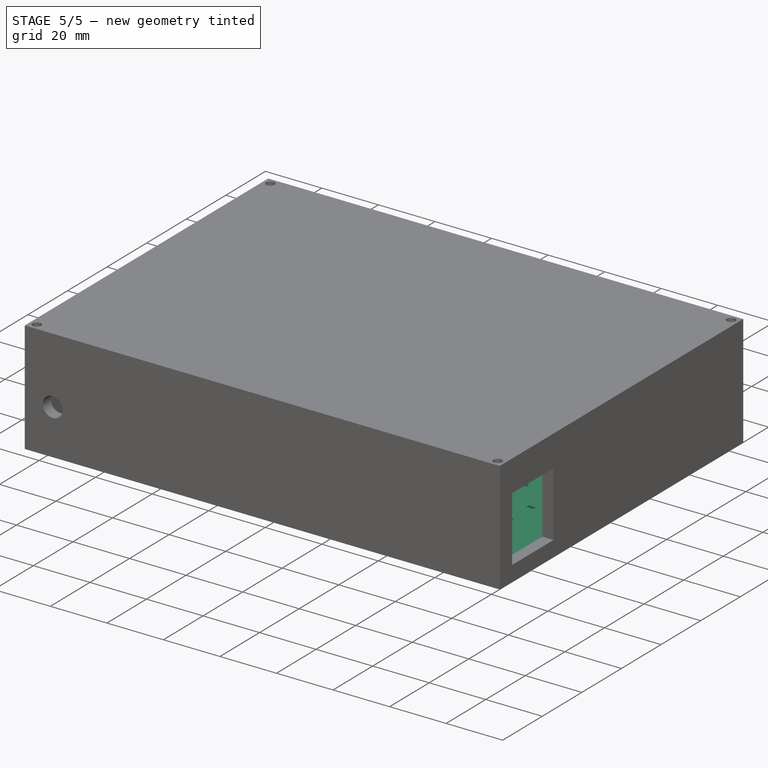
[diagram: stage 5 of 5 — iso view after this stage's code; geometry added in this stage tinted green]
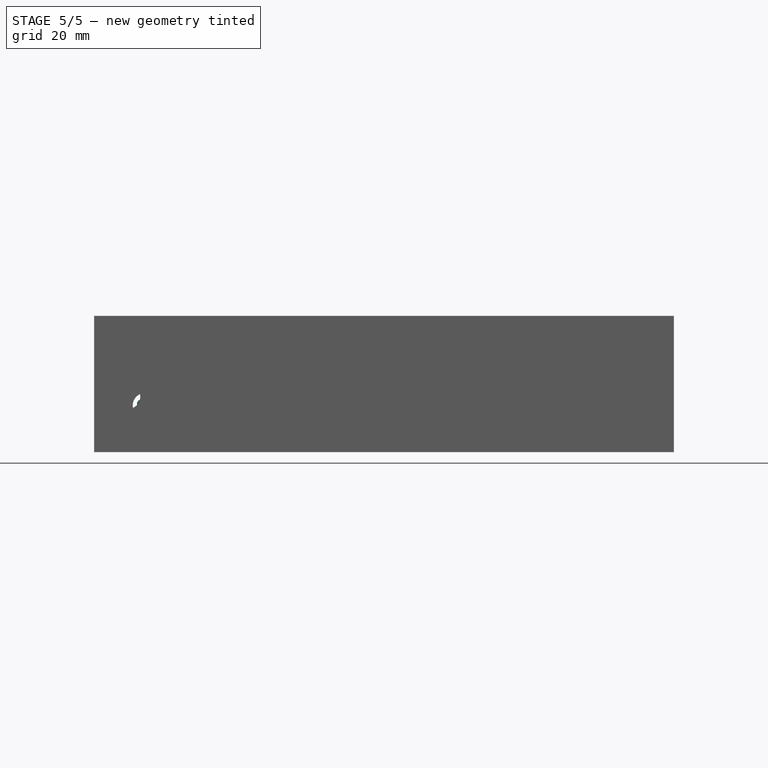
[diagram: stage 5 of 5 — front view after this stage's code; geometry added in this stage tinted green]
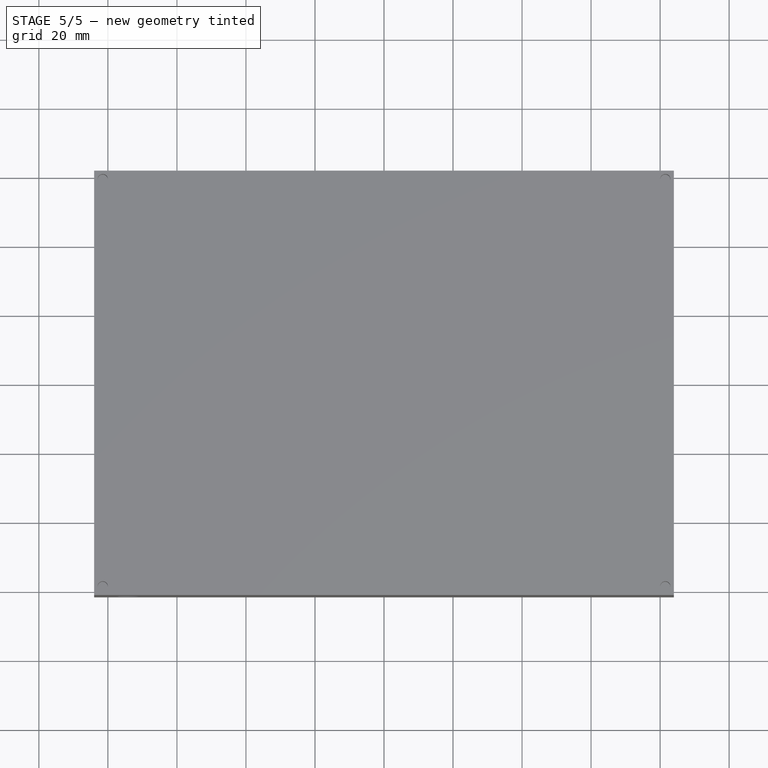
[diagram: stage 5 of 5 — top view after this stage's code; geometry added in this stage tinted green]
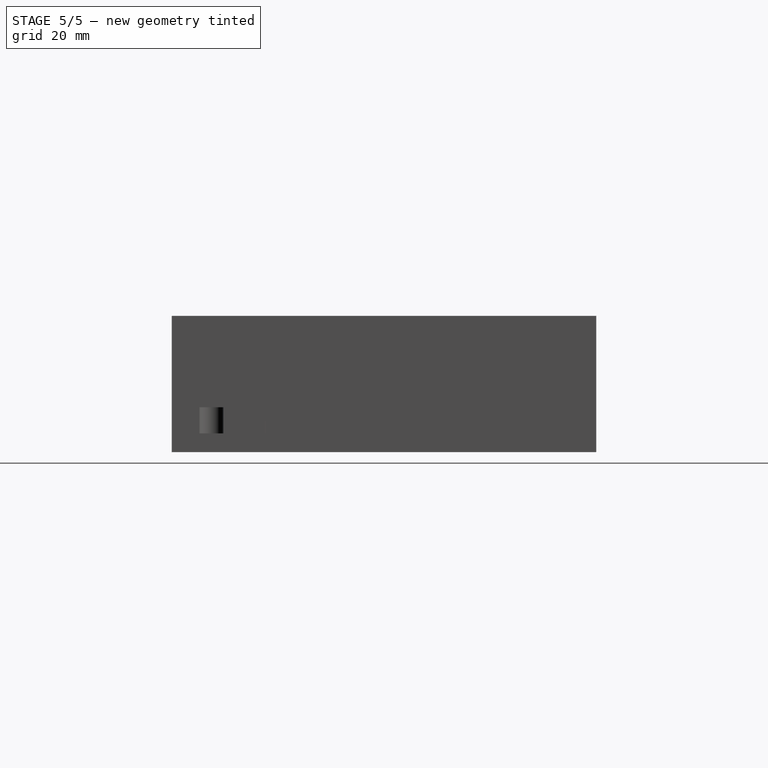
[diagram: stage 5 of 5 — right view after this stage's code; geometry added in this stage tinted green]
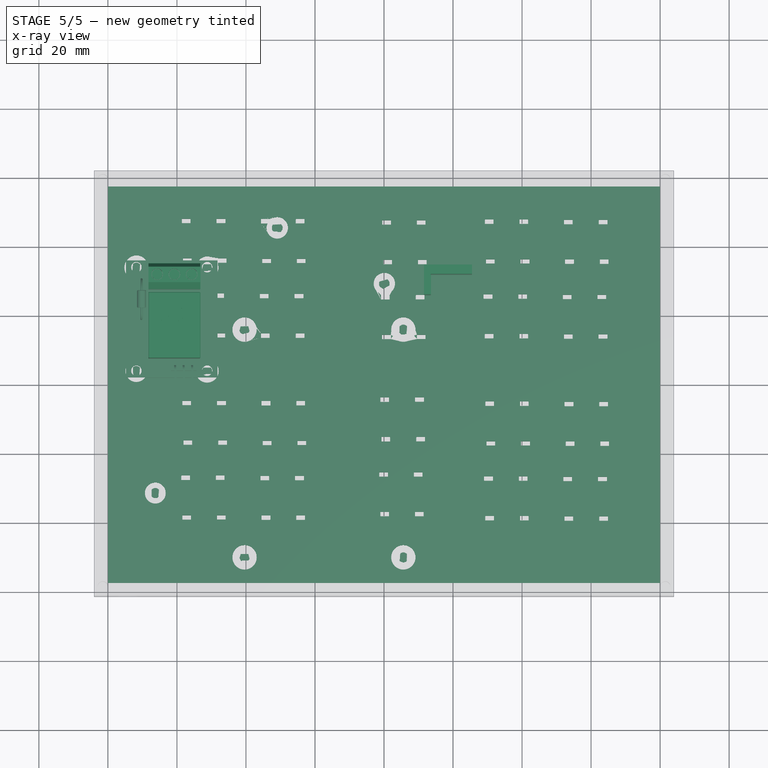
[diagram: stage 5 of 5 — x-ray composite at the top view; earlier geometry ghosted, this stage's added geometry solid]
FEATURE [Sketcher::SketchObject] Sketch001
  FullyConstrained = false
  MapMode = 5
  Placement = pos=(0,0,4) rot=(0,0,1;0rad)
  Support = -> [Extrude]
  sketch-geometry (10):
    g0: GeomPoint X=72.04 Y=-57.56 Z=0
    g1: LineSegment StartX=101.859 StartY=31.94 StartZ=0 EndX=13.54 EndY=31.94 EndZ=0
    g2: LineSegment StartX=13.54 StartY=31.94 StartZ=0 EndX=13.54 EndY=-57.5 EndZ=0
    g3: LineSegment StartX=13.54 StartY=31.94 StartZ=0 EndX=25.4527 EndY=31.94 EndZ=0
    g4: LineSegment StartX=25.4527 StartY=31.94 StartZ=0 EndX=25.4527 EndY=34.6196 EndZ=0
    g5: LineSegment StartX=25.4527 StartY=34.6196 StartZ=0 EndX=13.5756 EndY=34.6196 EndZ=0
    g6: LineSegment StartX=13.5756 StartY=34.6196 StartZ=0 EndX=11.5165 EndY=34.6196 EndZ=0
    g7: LineSegment StartX=11.5165 StartY=34.6196 StartZ=0 EndX=11.5165 EndY=25.9992 EndZ=0
    g8: LineSegment StartX=11.5165 StartY=25.9992 StartZ=0 EndX=13.54 EndY=25.9992 EndZ=0
    g9: LineSegment StartX=13.54 StartY=25.9992 StartZ=0 EndX=13.54 EndY=31.94 EndZ=0
  constraints (23):
    c: Horizontal(g1)
    c: Coincident(g2,g1)
    c: Vertical(g2)
    c: Distance(g0,g1) = 89.5
    c: Distance(g0,g2) = 58.5
    c: Coincident(g3,g4)
    c: Coincident(g4,g5)
    c: Horizontal(g3)
    c: Horizontal(g5)
    c: Vertical(g4)
    c: Coincident(g3,g1)
    c: Coincident(g6,g7)
    c: Coincident(g7,g8)
    c: Coincident(g8,g9)
    c: Horizontal(g6)
    c: Horizontal(g8)
    c: Vertical(g7)
    c: Vertical(g9)
    c: Coincident(g6,g5)
    c: PointOnObject(g9,g1)
    c: DistanceX(g-1,g0) = 72.04
    c: DistanceY(g2,g-1) = 57.5
    c: DistanceY(g0,g-1) = 57.56
FEATURE [Part::Extrusion] Extrude001  label="battery_holder"
  Base = -> Sketch001
  Dir = (0,0,1)
  DirMode = 2
  FaceMakerClass = Part::FaceMakerBullseye
  LengthFwd = 15
  LengthRev = 0
  Solid = true
  Symmetric = false
FEATURE [Part::Feature] Solid001
  shape: bbox 7.4 x 2.5 x 2.5 mm, 14 faces (baked)
FEATURE [Part::Feature] Solid002
  shape: bbox 0.6 x 2.3 x 8.3 mm, 14 faces (baked)
FEATURE [Part::Feature] Solid003
  shape: bbox 0.6 x 2.3 x 8.3 mm, 14 faces (baked)
FEATURE [Part::Feature] Solid004
  shape: bbox 0.6 x 2.3 x 8.3 mm, 14 faces (baked)
FEATURE [Part::Feature] Solid005
  shape: bbox 6.5 x 8 x 14 mm, 6 faces (baked)
FEATURE [Part::Feature] Solid006
  shape: bbox 15 x 10 x 7.5 mm, 35 faces (baked)
FEATURE [Part::Feature] Solid007
  shape: bbox 3 x 2 x 3 mm, 8 faces (baked)
FEATURE [Part::Feature] Solid008
  shape: bbox 3 x 2 x 3 mm, 8 faces (baked)
FEATURE [Part::Feature] Solid009
  shape: bbox 3 x 2 x 3 mm, 8 faces (baked)
FEATURE [Part::Feature] Solid010
  shape: bbox 3 x 1 x 3 mm, 4 faces (baked)
FEATURE [Part::Feature] Solid011
  shape: bbox 3 x 1 x 3 mm, 4 faces (baked)
FEATURE [Part::Feature] Solid012
  shape: bbox 3 x 1 x 3 mm, 4 faces (baked)
FEATURE [Part::Feature] Solid013
  shape: bbox 3.4 x 4.6 x 4 mm, 8 faces (baked)
FEATURE [Part::Feature] Solid014
  shape: bbox 3.4 x 4.6 x 4 mm, 8 faces (baked)
FEATURE [Part::Feature] Solid015
  shape: bbox 3.4 x 4.6 x 4 mm, 8 faces (baked)
FEATURE [Part::Feature] Solid016
  shape: bbox 3.8 x 1.382 x 4.2 mm, 6 faces (baked)
FEATURE [Part::Feature] Solid017
  shape: bbox 3.8 x 1.382 x 4.2 mm, 6 faces (baked)
FEATURE [Part::Feature] Solid018
  shape: bbox 3.8 x 1.382 x 4.2 mm, 6 faces (baked)
FEATURE [Part::Feature] Solid019
  shape: bbox 0.6 x 3 x 0.6 mm, 4 faces (baked)
FEATURE [Part::Feature] Solid020
  shape: bbox 0.6 x 3 x 0.6 mm, 4 faces (baked)
FEATURE [Part::Feature] Solid021
  shape: bbox 0.6 x 3 x 0.6 mm, 4 faces (baked)
FEATURE [Part::Feature] Solid022
  shape: bbox 26.5 x 7 x 34 mm, 88 faces (baked)
FEATURE [Part::Feature] Solid023
  shape: bbox 0.6 x 3 x 0.6 mm, 4 faces (baked)
FEATURE [Part::Feature] Solid024
  shape: bbox 0.6 x 4.072 x 12.64 mm, 12 faces (baked)
FEATURE [Part::Feature] Solid025
  shape: bbox 2.814 x 2.814 x 5 mm, 8 faces (baked)
FEATURE [Part::Feature] Solid026
  shape: bbox 15 x 15.5 x 19 mm, 88 faces (baked)
FEATURE [Part::Compound2] Compound  label="<unrecoverable-encoding: 18 bytes cfa4eeafaae1aea0ecbdadef... md5=fb5acf37>"
  Links = -> [Solid001,Solid002,Solid003,Solid004,Solid005,Solid006,Solid007,Solid008,Solid009,Solid010,Solid011,Solid012,Solid013,Solid014,Solid015,Solid016,Solid017,Solid018,Solid019,Solid020,Solid021,Solid022,Solid023,Solid024,Solid025,Solid026]
  Placement = pos=(-61.5,19,9) rot=(1,0,0;1.5708rad)
FEATURE [Part::MultiFuse] Fusion
  Shapes = -> [Extrude004,Extrude005,Extrude003,Extrude002,Extrude001,Extrude]
FEATURE [Part::MultiFuse] Fusion001
  Shapes = -> [Fusion,Cut002]
FEATURE [Part::MultiFuse] Fusion002
  Shapes = -> [Fusion001,Cut003,Cut004,Cut006,Cut005]
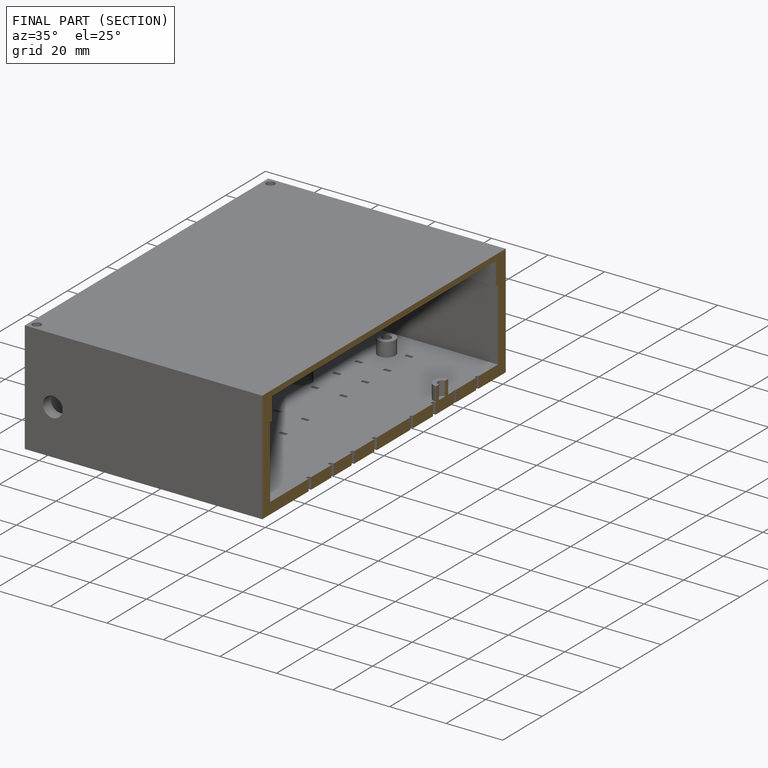
[diagram: finished part — half-section view (interior)]
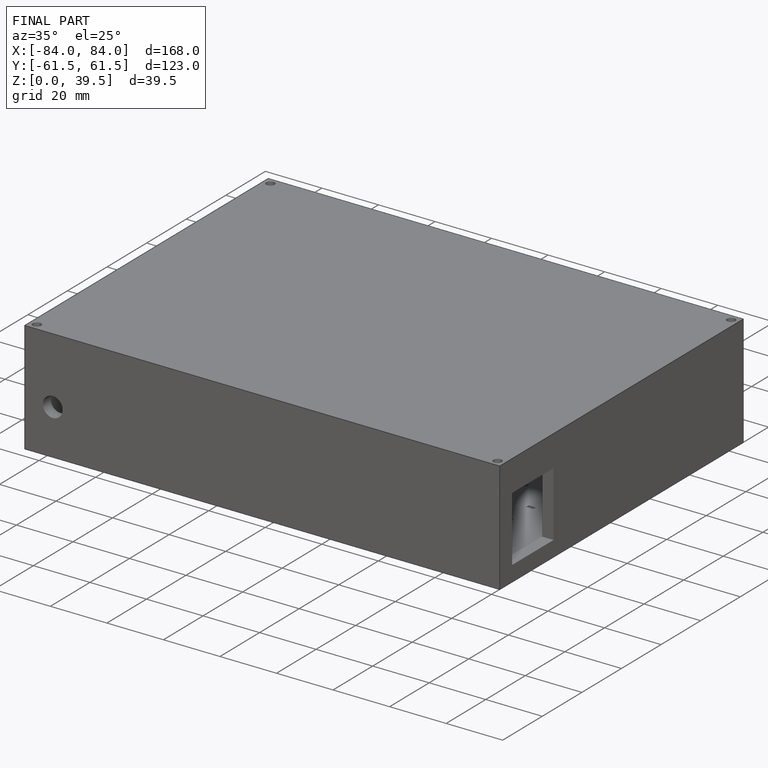
[diagram: finished part — iso view with bounding-box wireframe]
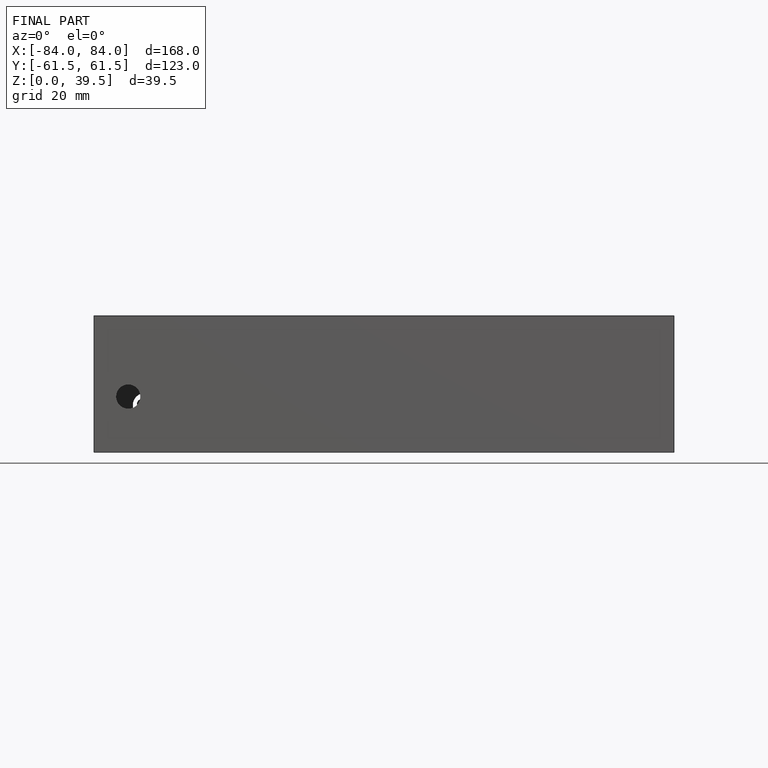
[diagram: finished part — front view with bounding-box wireframe]
